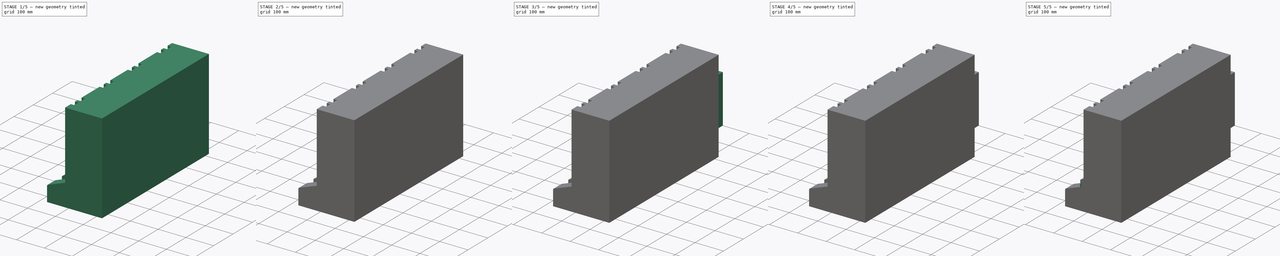
[diagram: build sequence overview — one tinted view per stage of 5, left to right]
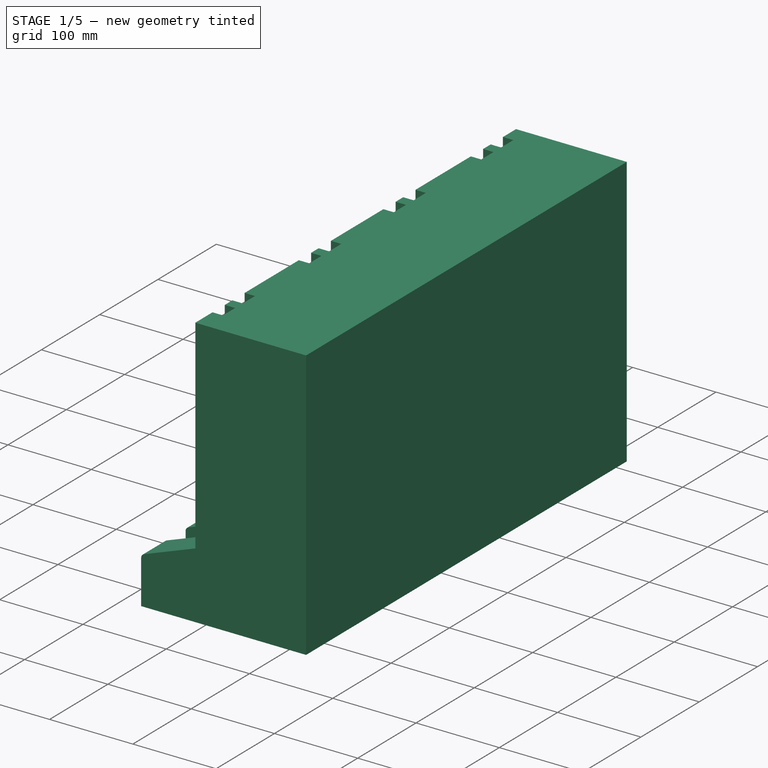
[diagram: stage 1 of 5 — iso view after this stage's code; geometry added in this stage tinted green]
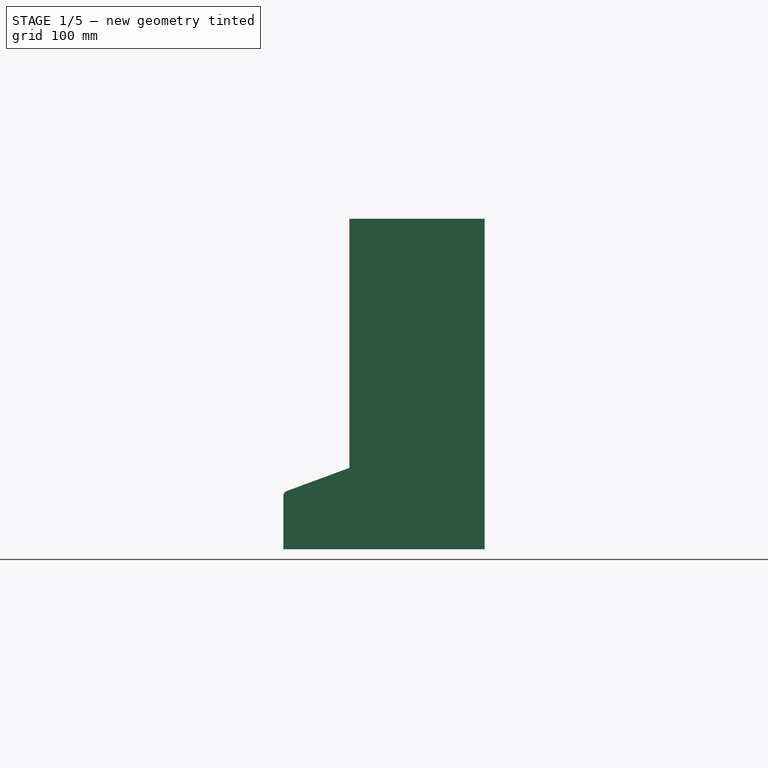
[diagram: stage 1 of 5 — front view after this stage's code; geometry added in this stage tinted green]
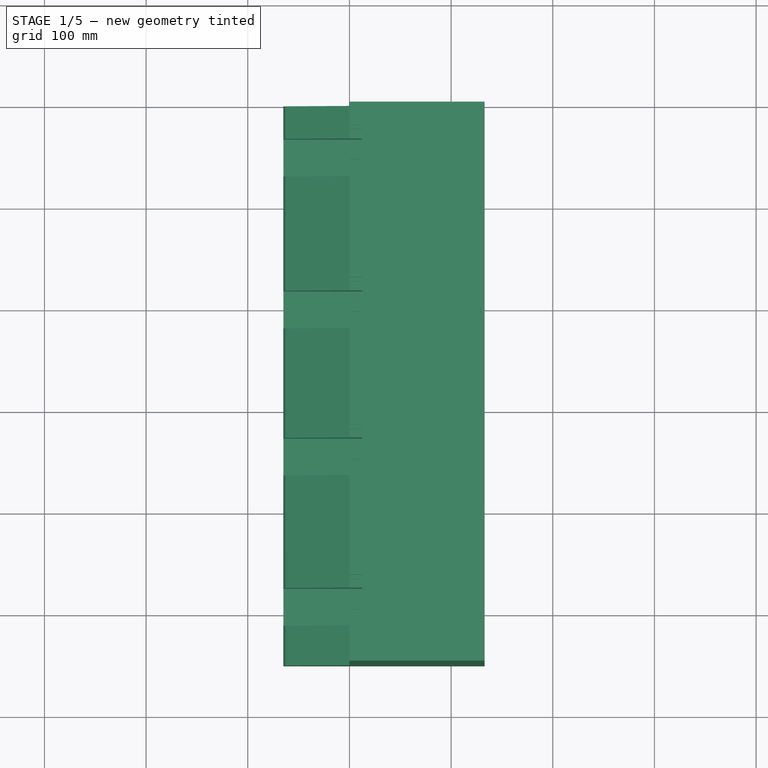
[diagram: stage 1 of 5 — top view after this stage's code; geometry added in this stage tinted green]
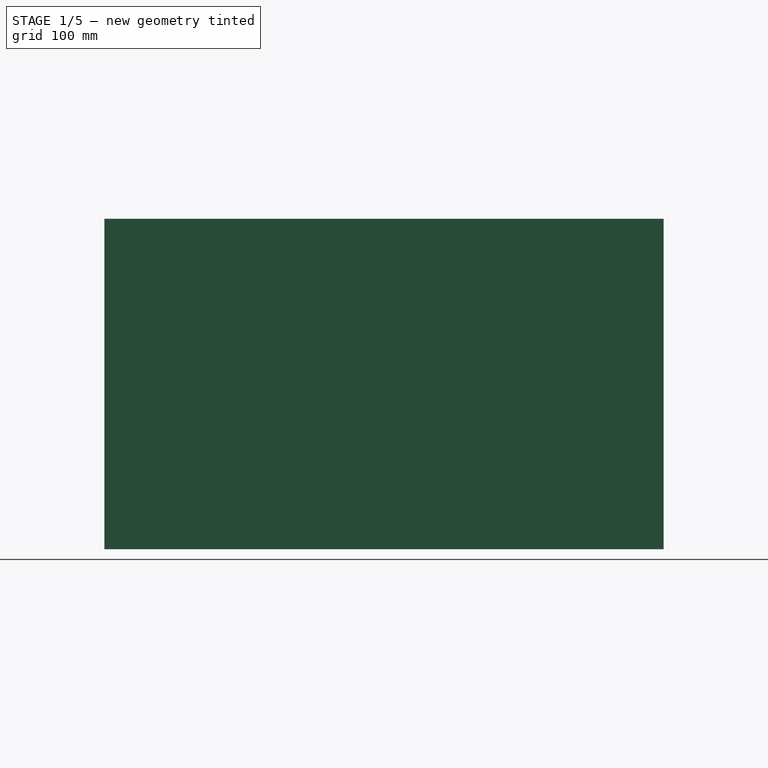
[diagram: stage 1 of 5 — right view after this stage's code; geometry added in this stage tinted green]
FCSTD DOCUMENT  (FreeCAD 1.0R39285 (Git))
Label: motor
License: All rights reserved
LicenseURL: https://en.wikipedia.org/wiki/All_rights_reserved
objects: App::Link×26, Sketcher::SketchObject×22, PartDesign::Pocket×14, PartDesign::Pad×9, PartDesign::Body×7, App::DocumentObjectGroup×3, PartDesign::Revolution×1, Spreadsheet::Sheet×1, PartDesign::CoordinateSystem×1, App::FeaturePython×1, App::Part×1, PartDesign::Fillet×1, PartDesign::Chamfer×1
note: 130 computed .brp shape members not serialized (recipe doc carries the construction recipe); baked Part::Feature solids carry a one-line shape summary decoded from their .brp

FEATURE [PartDesign::Body] Body003  label="PistonHead"
  AllowCompound = false
  Group = -> [Sketch010,Pad005,Sketch011,Pocket006,Sketch013,Revolution]
  Origin = -> Origin003
  Placement = pos=(0,-7,140.58) rot=(0,0,1;0rad)
  Tip = -> Revolution
FEATURE [Sketcher::SketchObject] Sketch014
  ArcFitTolerance = 1e-06
  AttachmentSupport = -> [XZ_Plane004]
  FullyConstrained = true
  MakeInternals = false
  MapMode = 5
  Placement = pos=(0,0,0) rot=(1,0,0;1.5708rad)
  sketch-geometry (6):
    g0: LineSegment StartX=0 StartY=245 StartZ=0 EndX=0 EndY=0 EndZ=0
    g1: LineSegment StartX=0 StartY=0 StartZ=0 EndX=-65 EndY=-24 EndZ=0
    g2: LineSegment StartX=-65 StartY=-24 StartZ=0 EndX=-65 EndY=-80 EndZ=0
    g3: LineSegment StartX=-65 StartY=-80 StartZ=0 EndX=133 EndY=-80 EndZ=0
    g4: LineSegment StartX=133 StartY=-80 StartZ=0 EndX=133 EndY=245 EndZ=0
    g5: LineSegment StartX=133 StartY=245 StartZ=0 EndX=0 EndY=245 EndZ=0
  constraints (17):
    c: Coincident(g0,g-1)
    c: Vertical(g0)
    c: Coincident(g0,g1)
    c: Coincident(g1,g2)
    c: Vertical(g2)
    c: Coincident(g2,g3)
    c: Horizontal(g3)
    c: Coincident(g3,g4)
    c: Vertical(g4)
    c: Coincident(g4,g5)
    c: Coincident(g5,g0)
    c: Horizontal(g4,g0)
    c: DistanceY(g-1,g4) = 245
    c: DistanceY(g1,g-1) = 24
    c: DistanceY(g2,g-1) = 80
    c: DistanceX(g-1,g3) = 133
    c: DistanceX(g1,g-1) = 65
FEATURE [PartDesign::Pad] Pad006
  Direction = (0,-1,2e-16)
  Length = 550
  Length2 = 10
  Placement = pos=(0,0,0) rot=(1,0,0;1.5708rad)
  Profile = -> Sketch014
  ReferenceAxis = -> Sketch014 [N_Axis]
  Refine = true
  Suppressed = false
  Type = 0
FEATURE [Sketcher::SketchObject] Sketch015
  ArcFitTolerance = 1e-06
  AttachmentSupport = -> [Pad006]
  FullyConstrained = true
  MakeInternals = false
  MapMode = 5
  Placement = pos=(0,0,0) rot=(0.707107,0,-0.707107;3.14159rad)
  sketch-geometry (16):
    g0: LineSegment StartX=-235 StartY=4 StartZ=0 EndX=-8 EndY=4 EndZ=0
    g1: LineSegment StartX=-8 StartY=4 StartZ=0 EndX=-8 EndY=100 EndZ=0
    g2: LineSegment StartX=-8 StartY=100 StartZ=0 EndX=-235 EndY=100 EndZ=0
    g3: LineSegment StartX=-235 StartY=100 StartZ=0 EndX=-235 EndY=4 EndZ=0
    g4: LineSegment StartX=-235 StartY=150 StartZ=0 EndX=-8 EndY=150 EndZ=0
    g5: LineSegment StartX=-8 StartY=150 StartZ=0 EndX=-8 EndY=246 EndZ=0
    g6: LineSegment StartX=-8 StartY=246 StartZ=0 EndX=-235 EndY=246 EndZ=0
    g7: LineSegment StartX=-235 StartY=246 StartZ=0 EndX=-235 EndY=150 EndZ=0
    g8: LineSegment StartX=-235 StartY=296 StartZ=0 EndX=-8 EndY=296 EndZ=0
    g9: LineSegment StartX=-8 StartY=296 StartZ=0 EndX=-8 EndY=392 EndZ=0
    g10: LineSegment StartX=-8 StartY=392 StartZ=0 EndX=-235 EndY=392 EndZ=0
    g11: LineSegment StartX=-235 StartY=392 StartZ=0 EndX=-235 EndY=296 EndZ=0
    g12: LineSegment StartX=-235 StartY=442 StartZ=0 EndX=-8 EndY=442 EndZ=0
    g13: LineSegment StartX=-8 StartY=442 StartZ=0 EndX=-8 EndY=538 EndZ=0
    g14: LineSegment StartX=-8 StartY=538 StartZ=0 EndX=-235 EndY=538 EndZ=0
    g15: LineSegment StartX=-235 StartY=538 StartZ=0 EndX=-235 EndY=442 EndZ=0
  constraints (48):
    c: Coincident(g0,g1)
    c: Coincident(g1,g2)
    c: Coincident(g2,g3)
    c: Coincident(g3,g0)
    c: Horizontal(g0)
    c: Horizontal(g2)
    c: Vertical(g1)
    c: Vertical(g3)
    c: Coincident(g4,g5)
    c: Coincident(g5,g6)
    c: Coincident(g6,g7)
    c: Coincident(g7,g4)
    c: Horizontal(g4)
    c: Horizontal(g6)
    c: Vertical(g5)
    c: Vertical(g7)
    c: Coincident(g8,g9)
    c: Coincident(g9,g10)
    c: Coincident(g10,g11)
    c: Coincident(g11,g8)
    c: Horizontal(g8)
    c: Horizontal(g10)
    c: Vertical(g9)
    c: Vertical(g11)
    c: Coincident(g12,g13)
    c: Coincident(g13,g14)
    c: Coincident(g14,g15)
    c: Coincident(g15,g12)
    c: Horizontal(g12)
    c: Horizontal(g14)
    c: Vertical(g13)
    c: Vertical(g15)
    c: DistanceX(g0,g-1) = 8
    c: DistanceX(g0,g-1) = 235
    c: DistanceY(g-1,g2) = 100
    c: DistanceY(g-1,g0) = 4
    c: Equal(g3,g7)
    c: Equal(g7,g11)
    c: Equal(g11,g15)
    c: Equal(g2,g4)
    c: Equal(g4,g8)
    c: Equal(g8,g12)
    c: Vertical(g1,g4)
    c: Vertical(g4,g8)
    c: Vertical(g8,g12)
    c: DistanceY(g1,g4) = 50
    c: DistanceY(g5,g8) = 50
    c: DistanceY(g9,g12) = 50
FEATURE [PartDesign::Pocket] Pocket008
  BaseFeature = -> Pad006
  Direction = (1,0,2e-16)
  Length = 85
  Length2 = 5
  Placement = pos=(0,0,0) rot=(1,0,0;1.5708rad)
  Profile = -> Sketch015
  ReferenceAxis = -> Sketch015 [N_Axis]
  Refine = true
  Suppressed = false
  Type = 0
FEATURE [Sketcher::SketchObject] Sketch016
  ArcFitTolerance = 1e-06
  AttachmentSupport = -> [YZ_Plane004]
  FullyConstrained = false
  MakeInternals = false
  MapMode = 5
  Placement = pos=(0,0,0) rot=(0.57735,0.57735,0.57735;2.0944rad)
  sketch-geometry (16):
    g0: LineSegment StartX=-32 StartY=75 StartZ=0 EndX=-69 EndY=75 EndZ=0
    g1: LineSegment StartX=-69 StartY=75 StartZ=0 EndX=-69 EndY=-65 EndZ=0
    g2: LineSegment StartX=-69 StartY=-65 StartZ=0 EndX=-32 EndY=-65 EndZ=0
    g3: LineSegment StartX=-32 StartY=-65 StartZ=0 EndX=-32 EndY=75 EndZ=0
    g4: LineSegment StartX=-181.411 StartY=75 StartZ=0 EndX=-218.411 EndY=75 EndZ=0
    g5: LineSegment StartX=-218.411 StartY=75 StartZ=0 EndX=-218.411 EndY=-65 EndZ=0
    g6: LineSegment StartX=-218.411 StartY=-65 StartZ=0 EndX=-181.411 EndY=-65 EndZ=0
    g7: LineSegment StartX=-181.411 StartY=-65 StartZ=0 EndX=-181.411 EndY=75 EndZ=0
    g8: LineSegment StartX=-326.116 StartY=75 StartZ=0 EndX=-363.116 EndY=75 EndZ=0
    g9: LineSegment StartX=-363.116 StartY=75 StartZ=0 EndX=-363.116 EndY=-65 EndZ=0
    g10: LineSegment StartX=-363.116 StartY=-65 StartZ=0 EndX=-326.116 EndY=-65 EndZ=0
    g11: LineSegment StartX=-326.116 StartY=-65 StartZ=0 EndX=-326.116 EndY=75 EndZ=0
    g12: LineSegment StartX=-473.828 StartY=75 StartZ=0 EndX=-510.828 EndY=75 EndZ=0
    g13: LineSegment StartX=-510.828 StartY=75 StartZ=0 EndX=-510.828 EndY=-65 EndZ=0
    g14: LineSegment StartX=-510.828 StartY=-65 StartZ=0 EndX=-473.828 EndY=-65 EndZ=0
    g15: LineSegment StartX=-473.828 StartY=-65 StartZ=0 EndX=-473.828 EndY=75 EndZ=0
  constraints (45):
    c: Coincident(g0,g1)
    c: Coincident(g1,g2)
    c: Coincident(g2,g3)
    c: Coincident(g3,g0)
    c: Horizontal(g0)
    c: Horizontal(g2)
    c: Vertical(g1)
    c: Vertical(g3)
    c: Coincident(g4,g5)
    c: Coincident(g5,g6)
    c: Coincident(g6,g7)
    c: Coincident(g7,g4)
    c: Horizontal(g4)
    c: Horizontal(g6)
    c: Vertical(g5)
    c: Vertical(g7)
    c: Coincident(g8,g9)
    c: Coincident(g9,g10)
    c: Coincident(g10,g11)
    c: Coincident(g11,g8)
    c: Horizontal(g8)
    c: Horizontal(g10)
    c: Vertical(g9)
    c: Vertical(g11)
    c: Coincident(g12,g13)
    c: Coincident(g13,g14)
    c: Coincident(g14,g15)
    c: Coincident(g15,g12)
    c: Horizontal(g12)
    c: Horizontal(g14)
    c: Vertical(g13)
    c: Vertical(g15)
    c: DistanceX(g2,g-1) = 32
    c: DistanceX(g1,g-1) = 69
    c: Equal(g2,g6)
    c: Equal(g6,g10)
    c: Equal(g10,g14)
    c: DistanceY(g-1,g0) = 75
    c: Equal(g3,g7)
    c: Equal(g7,g11)
    c: Equal(g11,g15)
    c: DistanceY(g2,g-1) = 65
    c: Horizontal(g0,g4)
    c: Horizontal(g4,g8)
    c: Horizontal(g8,g12)
FEATURE [PartDesign::Pocket] Pocket009
  BaseFeature = -> Pocket008
  Direction = (-1,0,0)
  Length = 130
  Length2 = 5
  Midplane = true
  Placement = pos=(0,0,0) rot=(1,0,0;1.5708rad)
  Profile = -> Sketch016
  ReferenceAxis = -> Sketch016 [N_Axis]
  Refine = true
  Suppressed = false
  Type = 0
FEATURE [PartDesign::Body] Body001  label="Rotor"
  AllowCompound = true
  Group = -> [Sketch001,Pad001,Sketch002,Pocket,Sketch003,Pocket001,Sketch008,Pocket004,Sketch009,Pocket005,Pocket013]
  Origin = -> Origin001
  Placement = pos=(0,2.5,0) rot=(0,-1,0;-1.33343rad)
  Tip = -> Pocket013
FEATURE [PartDesign::CoordinateSystem] LCS_Origin
  AttacherType = Attacher::AttachEngine3D
  AttachmentSupport = -> [X_Axis006]
  MapMode = 2
FEATURE [App::DocumentObjectGroup] Constraints
FEATURE [App::FeaturePython] Variables  # WARN: FeaturePython — macro-defined, semantics opaque (R4)
  Type = App::PropertyContainer
FEATURE [App::DocumentObjectGroup] Configurations
FEATURE [App::Link] Body006
  LinkPlacement = pos=(0,-46,0) rot=(0,0,1;0rad)
  LinkedObject = -> Body
  Placement = pos=(0,-46,0) rot=(0,0,1;0rad)
FEATURE [App::Link] Body007
  LinkPlacement = pos=(0,-46,0) rot=(0,0,1;0rad)
  LinkedObject = -> Body004
  Placement = pos=(0,-46,0) rot=(0,0,1;0rad)
FEATURE [App::Link] Rotor  label="Rotor001"
  LinkPlacement = pos=(0,-87,0) rot=(0,-1,0;-1.54643rad)
  LinkedObject = -> Body001
  Placement = pos=(0,-87,0) rot=(0,-1,0;-1.54643rad)
  expr: .Placement.Rotation.Angle = <<Parameters>>.Angle
FEATURE [App::Link] Rotor001  label="Rotor002"
  LinkPlacement = pos=(0,-236,0) rot=(0,-1,0;1.59516rad)
  LinkedObject = -> Body001
  Placement = pos=(0,-236,0) rot=(0,-1,0;1.59516rad)
  expr: .Placement.Rotation.Angle = <<Parameters>>.Angle_rev
FEATURE [App::Link] Rotor002  label="Rotor003"
  LinkPlacement = pos=(0,-381,0) rot=(0,-1,0;1.59516rad)
  LinkedObject = -> Body001
  Placement = pos=(0,-381,0) rot=(0,-1,0;1.59516rad)
  expr: .Placement.Rotation.Angle = <<Parameters>>.Angle_rev
FEATURE [App::Link] Rotor003  label="Rotor004"
  LinkPlacement = pos=(0,-528,0) rot=(0,-1,0;-1.54643rad)
  LinkedObject = -> Body001
  Placement = pos=(0,-528,0) rot=(0,-1,0;-1.54643rad)
  expr: .Placement.Rotation.Angle = <<Parameters>>.Angle
FEATURE [App::Link] Bar  label="Bar001"
  LinkPlacement = pos=(44.9866,-89.5,-43.9035) rot=(0,1,0;-0.261722rad)
  LinkedObject = -> Body002
  Placement = pos=(44.9866,-89.5,-43.9035) rot=(0,1,0;-0.261722rad)
  expr: .Placement.Base.x = <<Parameters>>.Bar_PosX
  expr: .Placement.Base.z = -45 mm + <<Parameters>>.Crank_Pos
  expr: .Placement.Rotation.Angle = <<Parameters>>.Bar_Angle
FEATURE [App::Link] Bar001  label="Bar002"
  LinkPlacement = pos=(-44.9866,-238.5,-46.0965) rot=(0,1,0;0.261722rad)
  LinkedObject = -> Body002
  Placement = pos=(-44.9866,-238.5,-46.0965) rot=(0,1,0;0.261722rad)
  expr: .Placement.Base.x = <<Parameters>>.Bar_PosX_rev
  expr: .Placement.Base.z = -45 mm + <<Parameters>>.Crank_Pos_rev
  expr: .Placement.Rotation.Angle = <<Parameters>>.Bar_Angle_rev
FEATURE [App::Link] Bar002  label="Bar003"
  LinkPlacement = pos=(-44.9866,-383.5,-46.0965) rot=(0,1,0;0.261722rad)
  LinkedObject = -> Body002
  Placement = pos=(-44.9866,-383.5,-46.0965) rot=(0,1,0;0.261722rad)
  expr: .Placement.Base.x = <<Parameters>>.Bar_PosX_rev
  expr: .Placement.Base.z = -45 mm + <<Parameters>>.Crank_Pos_rev
  expr: .Placement.Rotation.Angle = <<Parameters>>.Bar_Angle_rev
FEATURE [App::Link] Bar003  label="Bar004"
  LinkPlacement = pos=(44.9866,-530.5,-43.9035) rot=(0,1,0;-0.261722rad)
  LinkedObject = -> Body002
  Placement = pos=(44.9866,-530.5,-43.9035) rot=(0,1,0;-0.261722rad)
  expr: .Placement.Base.x = <<Parameters>>.Bar_PosX
  expr: .Placement.Base.z = -45 mm + <<Parameters>>.Crank_Pos
  expr: .Placement.Rotation.Angle = <<Parameters>>.Bar_Angle
FEATURE [App::Link] CaseInterior  label="CaseInterior001"
  LinkPlacement = pos=(0,-89,73) rot=(0,0,1;0rad)
  LinkedObject = -> Body005
  Placement = pos=(0,-89,73) rot=(0,0,1;0rad)
FEATURE [App::Link] CaseInterior001  label="CaseInterior002"
  LinkPlacement = pos=(0,-238,73) rot=(0,0,1;0rad)
  LinkedObject = -> Body005
  Placement = pos=(0,-238,73) rot=(0,0,1;0rad)
FEATURE [App::Link] CaseInterior002  label="CaseInterior003"
  LinkPlacement = pos=(0,-383,73) rot=(0,0,1;0rad)
  LinkedObject = -> Body005
  Placement = pos=(0,-383,73) rot=(0,0,1;0rad)
FEATURE [App::Link] CaseInterior003  label="CaseInterior004"
  LinkPlacement = pos=(0,-530,73) rot=(0,0,1;0rad)
  LinkedObject = -> Body005
  Placement = pos=(0,-530,73) rot=(0,0,1;0rad)
FEATURE [App::Link] PistonHead  label="PistonHead001"
  LinkPlacement = pos=(0,-96.5,131.096) rot=(0,0,1;0rad)
  LinkedObject = -> Body003
  Placement = pos=(0,-96.5,131.096) rot=(0,0,1;0rad)
  expr: .Placement.Base.z = 130 mm + <<Parameters>>.Crank_Pos
FEATURE [App::Link] PistonHead001  label="PistonHead002"
  LinkPlacement = pos=(0,-537.5,131.096) rot=(0,0,1;0rad)
  LinkedObject = -> Body003
  Placement = pos=(0,-537.5,131.096) rot=(0,0,1;0rad)
  expr: .Placement.Base.y = -537.5
  expr: .Placement.Base.z = 130 mm + <<Parameters>>.Crank_Pos
FEATURE [App::Link] PistonHead002  label="PistonHead003"
  LinkPlacement = pos=(0,-245.5,128.904) rot=(0,0,1;0rad)
  LinkedObject = -> Body003
  Placement = pos=(0,-245.5,128.904) rot=(0,0,1;0rad)
  expr: .Placement.Base.z = 130 mm + <<Parameters>>.Crank_Pos_rev
FEATURE [App::Link] PistonHead003  label="PistonHead004"
  LinkPlacement = pos=(0,-390.5,128.904) rot=(0,0,1;0rad)
  LinkedObject = -> Body003
  Placement = pos=(0,-390.5,128.904) rot=(0,0,1;0rad)
  expr: .Placement.Base.z = 130 mm + <<Parameters>>.Crank_Pos_rev
FEATURE [Sketcher::SketchObject] Sketch019
  ArcFitTolerance = 1e-06
  AttachmentSupport = -> [XY_Plane004]
  ExternalGeometry = -> [Pocket009]
  FullyConstrained = true
  MakeInternals = false
  MapMode = 5
  sketch-geometry (32):
    g0: LineSegment StartX=0 StartY=-22.5 StartZ=0 EndX=0 EndY=-43.5 EndZ=0
    g1: LineSegment StartX=0 StartY=-43.5 StartZ=0 EndX=12.5 EndY=-43.5 EndZ=0
    g2: LineSegment StartX=12.5 StartY=-43.5 StartZ=0 EndX=12.5 EndY=-22.5 EndZ=0
    g3: LineSegment StartX=12.5 StartY=-22.5 StartZ=0 EndX=0 EndY=-22.5 EndZ=0
    g4: LineSegment StartX=0 StartY=-56.5 StartZ=0 EndX=0 EndY=-77.5 EndZ=0
    g5: LineSegment StartX=0 StartY=-77.5 StartZ=0 EndX=12.5 EndY=-77.5 EndZ=0
    g6: LineSegment StartX=12.5 StartY=-77.5 StartZ=0 EndX=12.5 EndY=-56.5 EndZ=0
    g7: LineSegment StartX=12.5 StartY=-56.5 StartZ=0 EndX=0 EndY=-56.5 EndZ=0
    g8: LineSegment StartX=0 StartY=-172.5 StartZ=0 EndX=0 EndY=-193.5 EndZ=0
    g9: LineSegment StartX=0 StartY=-193.5 StartZ=0 EndX=12.5 EndY=-193.5 EndZ=0
    g10: LineSegment StartX=12.5 StartY=-193.5 StartZ=0 EndX=12.5 EndY=-172.5 EndZ=0
    g11: LineSegment StartX=12.5 StartY=-172.5 StartZ=0 EndX=0 EndY=-172.5 EndZ=0
    g12: LineSegment StartX=0 StartY=-206.5 StartZ=0 EndX=0 EndY=-227.5 EndZ=0
    g13: LineSegment StartX=0 StartY=-227.5 StartZ=0 EndX=12.5 EndY=-227.5 EndZ=0
    g14: LineSegment StartX=12.5 StartY=-227.5 StartZ=0 EndX=12.5 EndY=-206.5 EndZ=0
    g15: LineSegment StartX=12.5 StartY=-206.5 StartZ=0 EndX=0 EndY=-206.5 EndZ=0
    g16: LineSegment StartX=0 StartY=-317.5 StartZ=0 EndX=0 EndY=-338.5 EndZ=0
    g17: LineSegment StartX=0 StartY=-338.5 StartZ=0 EndX=12.5 EndY=-338.5 EndZ=0
    g18: LineSegment StartX=12.5 StartY=-338.5 StartZ=0 EndX=12.5 EndY=-317.5 EndZ=0
    g19: LineSegment StartX=12.5 StartY=-317.5 StartZ=0 EndX=0 EndY=-317.5 EndZ=0
    g20: LineSegment StartX=0 StartY=-351.5 StartZ=0 EndX=0 EndY=-372.5 EndZ=0
    g21: LineSegment StartX=0 StartY=-372.5 StartZ=0 EndX=12.5 EndY=-372.5 EndZ=0
    g22: LineSegment StartX=12.5 StartY=-372.5 StartZ=0 EndX=12.5 EndY=-351.5 EndZ=0
    g23: LineSegment StartX=12.5 StartY=-351.5 StartZ=0 EndX=0 EndY=-351.5 EndZ=0
    g24: LineSegment StartX=0 StartY=-465.5 StartZ=0 EndX=0 EndY=-486.5 EndZ=0
    g25: LineSegment StartX=0 StartY=-486.5 StartZ=0 EndX=12.5 EndY=-486.5 EndZ=0
    g26: LineSegment StartX=12.5 StartY=-486.5 StartZ=0 EndX=12.5 EndY=-465.5 EndZ=0
    g27: LineSegment StartX=12.5 StartY=-465.5 StartZ=0 EndX=0 EndY=-465.5 EndZ=0
    g28: LineSegment StartX=0 StartY=-499.5 StartZ=0 EndX=0 EndY=-520.5 EndZ=0
    g29: LineSegment StartX=0 StartY=-520.5 StartZ=0 EndX=12.5 EndY=-520.5 EndZ=0
    g30: LineSegment StartX=12.5 StartY=-520.5 StartZ=0 EndX=12.5 EndY=-499.5 EndZ=0
    g31: LineSegment StartX=12.5 StartY=-499.5 StartZ=0 EndX=0 EndY=-499.5 EndZ=0
  constraints (96):
    c: Coincident(g0,g1)
    c: Coincident(g1,g2)
    c: Coincident(g2,g3)
    c: Coincident(g3,g0)
    c: Vertical(g0)
    c: Vertical(g2)
    c: Horizontal(g1)
    c: Horizontal(g3)
    c: PointOnObject(g0,g-3)
    c: Coincident(g4,g5)
    c: Coincident(g5,g6)
    c: Coincident(g6,g7)
    c: Coincident(g7,g4)
    c: Vertical(g4)
    c: Vertical(g6)
    c: Horizontal(g5)
    c: Horizontal(g7)
    c: PointOnObject(g4,g-3)
    c: DistanceY(g0,g-1) = 22.5
    c: DistanceX(g-1,g2) = 12.5
    c: DistanceY(g0,g-1) = 43.5
    c: Equal(g1,g7)
    c: Equal(g0,g4)
    c: Coincident(g8,g9)
    c: Coincident(g9,g10)
    c: Coincident(g10,g11)
    c: Coincident(g11,g8)
    c: Vertical(g8)
    c: Vertical(g10)
    c: Horizontal(g9)
    c: Horizontal(g11)
    c: PointOnObject(g8,g-3)
    c: Coincident(g12,g13)
    c: Coincident(g13,g14)
    c: Coincident(g14,g15)
    c: Coincident(g15,g12)
    c: Vertical(g12)
    c: Vertical(g14)
    c: Horizontal(g13)
    c: Horizontal(g15)
    c: PointOnObject(g12,g-3)
    c: Coincident(g16,g17)
    c: Coincident(g17,g18)
    c: Coincident(g18,g19)
    c: Coincident(g19,g16)
    c: Vertical(g16)
    c: Vertical(g18)
    c: Horizontal(g17)
    c: Horizontal(g19)
    c: PointOnObject(g16,g-3)
    c: Coincident(g20,g21)
    c: Coincident(g21,g22)
    c: Coincident(g22,g23)
    c: Coincident(g23,g20)
    c: Vertical(g20)
    c: Vertical(g22)
    c: Horizontal(g21)
    c: Horizontal(g23)
    c: PointOnObject(g20,g-3)
    c: Coincident(g24,g25)
    c: Coincident(g25,g26)
    c: Coincident(g26,g27)
    c: Coincident(g27,g24)
    c: Vertical(g24)
    c: Vertical(g26)
    c: Horizontal(g25)
    c: Horizontal(g27)
    c: PointOnObject(g24,g-3)
    c: Coincident(g28,g29)
    c: Coincident(g29,g30)
    c: Coincident(g30,g31)
    c: Coincident(g31,g28)
    c: Vertical(g28)
    c: Vertical(g30)
    c: Horizontal(g29)
    c: Horizontal(g31)
    c: PointOnObject(g28,g-3)
    c: Equal(g5,g11)
    c: Equal(g4,g8)
    c: Equal(g9,g15)
    c: Equal(g8,g12)
    c: Equal(g13,g19)
    c: Equal(g12,g16)
    c: Equal(g17,g23)
    c: Equal(g16,g20)
    c: Equal(g21,g27)
    c: Equal(g25,g31)
    c: Equal(g20,g24)
    c: Equal(g24,g28)
    c: DistanceY(g4,g0) = 13
    c: DistanceY(g12,g8) = 13
    c: DistanceY(g20,g16) = 13
    c: DistanceY(g28,g24) = 13
    c: DistanceY(g8,g4) = 95
    c: DistanceY(g16,g12) = 90
    c: DistanceY(g24,g20) = 93
FEATURE [PartDesign::Pocket] Pocket014
  BaseFeature = -> Pocket009
  Direction = (0,0,-1)
  Length = 111
  Length2 = 5
  Placement = pos=(0,0,0) rot=(1,0,0;1.5708rad)
  Profile = -> Sketch019
  ReferenceAxis = -> Sketch019 [N_Axis]
  Refine = true
  Reversed = true
  Suppressed = false
  Type = 1
FEATURE [PartDesign::Body] Body008  label="Supapa"
  AllowCompound = false
  Group = -> [Sketch020,Pad008,Sketch021,Pad009]
  Origin = -> Origin007
  Placement = pos=(0,0,236) rot=(0,0,1;0rad)
  Tip = -> Pad009
FEATURE [PartDesign::Fillet] Fillet
  Base = -> Pocket014 [Edge14,Edge91,Edge87,Edge83,Edge79]
  BaseFeature = -> Pocket014
  Placement = pos=(0,0,0) rot=(1,0,0;1.5708rad)
  Radius = 5
  Refine = true
  SupportTransform = false
  Suppressed = false
  UseAllEdges = false
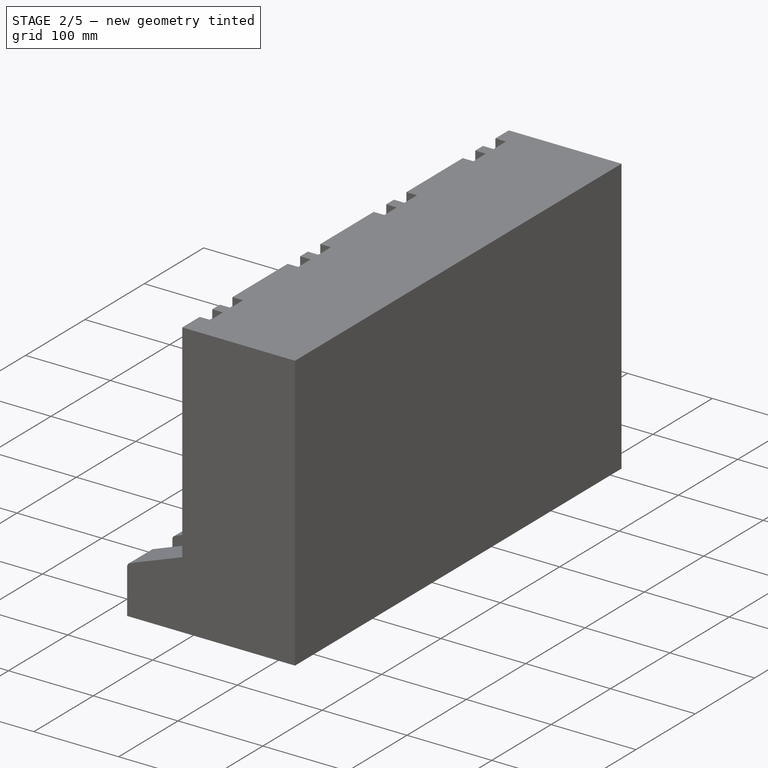
[diagram: stage 2 of 5 — iso view after this stage's code; geometry added in this stage tinted green]
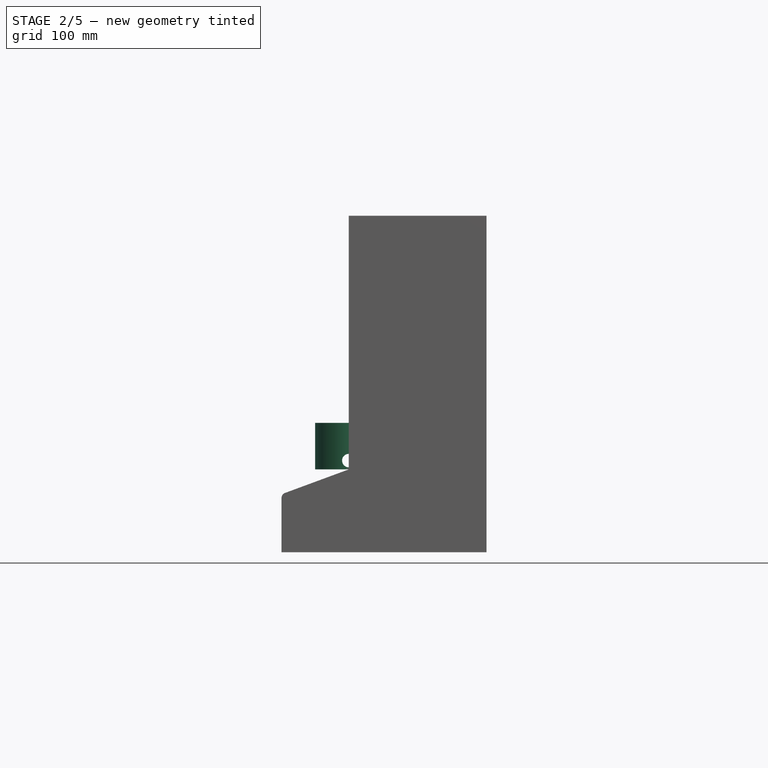
[diagram: stage 2 of 5 — front view after this stage's code; geometry added in this stage tinted green]
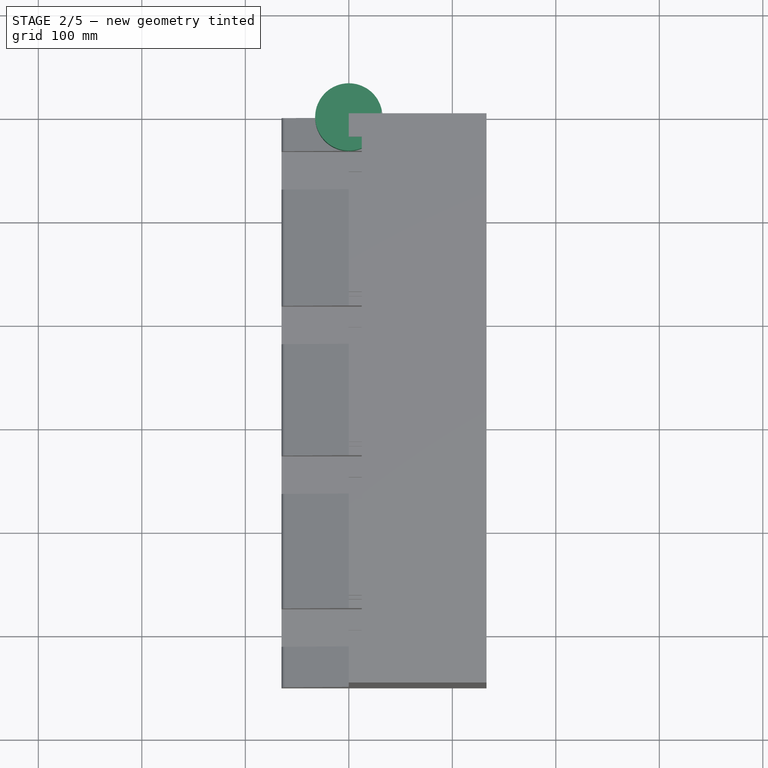
[diagram: stage 2 of 5 — top view after this stage's code; geometry added in this stage tinted green]
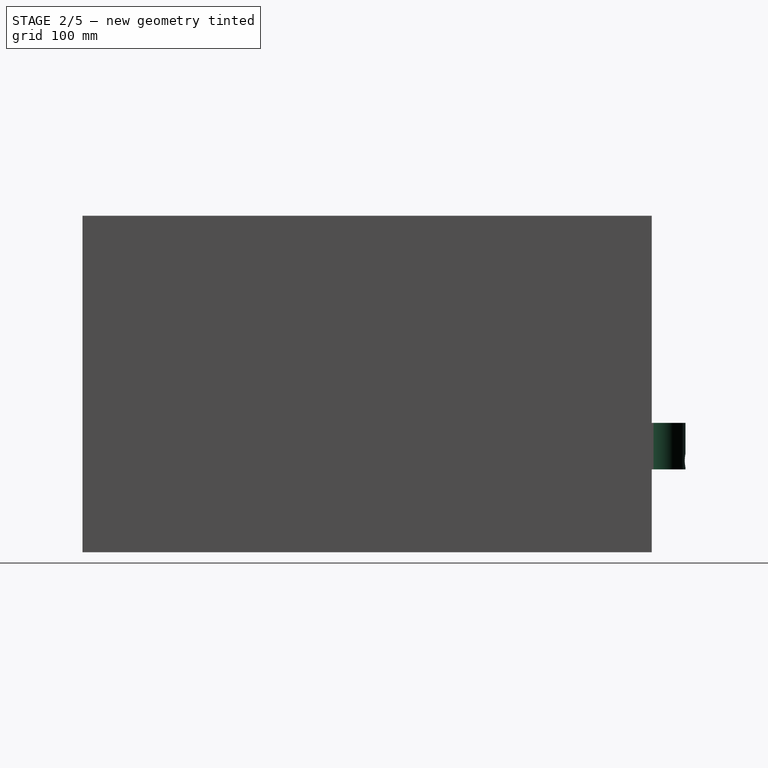
[diagram: stage 2 of 5 — right view after this stage's code; geometry added in this stage tinted green]
FEATURE [Sketcher::SketchObject] Sketch008
  ArcFitTolerance = 1e-06
  AttachmentSupport = -> [YZ_Plane001]
  FullyConstrained = false
  MakeInternals = false
  MapMode = 5
  Placement = pos=(0,0,0) rot=(0.57735,0.57735,0.57735;2.0944rad)
  sketch-geometry (4):
    g0: LineSegment StartX=-14.5 StartY=72.9316 StartZ=0 EndX=-14.5 EndY=-69.5294 EndZ=0
    g1: LineSegment StartX=-14.5 StartY=-69.5294 StartZ=0 EndX=-5.5 EndY=-69.5294 EndZ=0
    g2: LineSegment StartX=-5.5 StartY=-69.5294 StartZ=0 EndX=-5.5 EndY=72.9316 EndZ=0
    g3: LineSegment StartX=-5.5 StartY=72.9316 StartZ=0 EndX=-14.5 EndY=72.9316 EndZ=0
  constraints (10):
    c: Coincident(g0,g1)
    c: Coincident(g1,g2)
    c: Coincident(g2,g3)
    c: Coincident(g3,g0)
    c: Vertical(g0)
    c: Vertical(g2)
    c: Horizontal(g1)
    c: Horizontal(g3)
    c: DistanceX(g2,g-1) = 5.5
    c: DistanceX(g0,g-1) = 14.5
FEATURE [Sketcher::SketchObject] Sketch009
  ArcFitTolerance = 1e-06
  AttachmentSupport = -> [XZ_Plane001]
  FullyConstrained = true
  MakeInternals = false
  MapMode = 5
  Placement = pos=(0,0,0) rot=(1,0,0;1.5708rad)
  sketch-geometry (1):
    g0: Circle CenterX=0 CenterY=45 CenterZ=0 NormalX=0 NormalY=0 NormalZ=1 AngleXU=0 Radius=10
  constraints (3):
    c: Diameter(g0) = 20
    c: PointOnObject(g0,g-2)
    c: Distance(g0,g-1) = 45
FEATURE [Sketcher::SketchObject] Sketch010
  ArcFitTolerance = 1e-06
  AttachmentSupport = -> [XY_Plane003]
  FullyConstrained = true
  MakeInternals = false
  MapMode = 5
  sketch-geometry (1):
    g0: Circle CenterX=0 CenterY=0 CenterZ=0 NormalX=0 NormalY=0 NormalZ=1 AngleXU=0 Radius=32.5
  constraints (2):
    c: Diameter(g0) = 65
    c: Coincident(g0,g-1)
FEATURE [PartDesign::Pad] Pad005
  Direction = (0,0,1)
  Length = 45
  Length2 = 10
  Profile = -> Sketch010
  ReferenceAxis = -> Sketch010 [N_Axis]
  Refine = true
  Suppressed = false
  Type = 0
FEATURE [Sketcher::SketchObject] Sketch011
  ArcFitTolerance = 1e-06
  AttachmentSupport = -> [XZ_Plane003]
  FullyConstrained = true
  MakeInternals = false
  MapMode = 5
  Placement = pos=(0,0,0) rot=(1,0,0;1.5708rad)
  sketch-geometry (1):
    g0: Circle CenterX=0 CenterY=8.5 CenterZ=0 NormalX=0 NormalY=0 NormalZ=1 AngleXU=0 Radius=6.5
  constraints (3):
    c: Diameter(g0) = 13
    c: PointOnObject(g0,g-2)
    c: DistanceY(g-1,g0) = 8.5
FEATURE [PartDesign::Pocket] Pocket006
  BaseFeature = -> Pad005
  Direction = (0,1,-2e-16)
  Length = 5
  Length2 = 5
  Midplane = true
  Profile = -> Sketch011
  ReferenceAxis = -> Sketch011 [N_Axis]
  Refine = true
  Suppressed = false
  Type = 1
FEATURE [Sketcher::SketchObject] Sketch020
  ArcFitTolerance = 1e-06
  AttachmentSupport = -> [XY_Plane007]
  FullyConstrained = false
  MakeInternals = false
  MapMode = 5
  sketch-geometry (4):
    g0: LineSegment StartX=0 StartY=20.4996 StartZ=0 EndX=0 EndY=-0.500933 EndZ=0
    g1: LineSegment StartX=0 StartY=-0.500933 StartZ=0 EndX=12.4997 EndY=-0.500933 EndZ=0
    g2: LineSegment StartX=12.4997 StartY=-0.500933 StartZ=0 EndX=12.4997 EndY=20.4996 EndZ=0
    g3: LineSegment StartX=12.4997 StartY=20.4996 StartZ=0 EndX=0 EndY=20.4996 EndZ=0
  constraints (9):
    c: Coincident(g0,g1)
    c: Coincident(g1,g2)
    c: Coincident(g2,g3)
    c: Coincident(g3,g0)
    c: Vertical(g0)
    c: Vertical(g2)
    c: Horizontal(g1)
    c: Horizontal(g3)
    c: PointOnObject(g0,g-2)
FEATURE [PartDesign::Pad] Pad008
  Direction = (0,0,1)
  Length = 8
  Length2 = 10
  Profile = -> Sketch020
  ReferenceAxis = -> Sketch020 [N_Axis]
  Refine = true
  Suppressed = false
  Type = 0
FEATURE [App::Link] Supapa  label="Supapa001"
  LinkPlacement = pos=(0,-89,236) rot=(0,0,1;0rad)
  LinkedObject = -> Body008
  Placement = pos=(0,-89,236) rot=(0,0,1;0rad)
  expr: .Placement.Base.z = 236 mm + <<Parameters>>.Supapa_A
FEATURE [App::Link] Supapa001  label="Supapa002"
  LinkPlacement = pos=(0,-123,236) rot=(0,0,1;0rad)
  LinkedObject = -> Body008
  Placement = pos=(0,-123,236) rot=(0,0,1;0rad)
  expr: .Placement.Base.z = 236 mm + <<Parameters>>.Supapa_B
FEATURE [App::Link] Supapa002  label="Supapa003"
  LinkPlacement = pos=(0,-239,236) rot=(0,0,1;0rad)
  LinkedObject = -> Body008
  Placement = pos=(0,-239,236) rot=(0,0,1;0rad)
  expr: .Placement.Base.z = 236 mm + <<Parameters>>.Supapa_A2
FEATURE [App::Link] Supapa003  label="Supapa004"
  LinkPlacement = pos=(0,-273,236) rot=(0,0,1;0rad)
  LinkedObject = -> Body008
  Placement = pos=(0,-273,236) rot=(0,0,1;0rad)
  expr: .Placement.Base.z = 236 mm + <<Parameters>>.Supapa_B2
FEATURE [App::Link] Supapa004  label="Supapa005"
  LinkPlacement = pos=(0,-384,236.487) rot=(0,0,1;0rad)
  LinkedObject = -> Body008
  Placement = pos=(0,-384,236.487) rot=(0,0,1;0rad)
  expr: .Placement.Base.z = 236 mm + <<Parameters>>.Supapa_A3
FEATURE [App::Link] Supapa005  label="Supapa006"
  LinkPlacement = pos=(0,-418,236) rot=(0,0,1;0rad)
  LinkedObject = -> Body008
  Placement = pos=(0,-418,236) rot=(0,0,1;0rad)
  expr: .Placement.Base.z = 236 mm + <<Parameters>>.Supapa_B3
FEATURE [App::Link] Supapa006  label="Supapa007"
  LinkPlacement = pos=(0,-532,236) rot=(0,0,1;0rad)
  LinkedObject = -> Body008
  Placement = pos=(0,-532,236) rot=(0,0,1;0rad)
  expr: .Placement.Base.z = 236 mm + <<Parameters>>.Supapa_A4
FEATURE [App::Link] Supapa007  label="Supapa008"
  LinkPlacement = pos=(0,-566,236.487) rot=(0,0,1;0rad)
  LinkedObject = -> Body008
  Placement = pos=(0,-566,236.487) rot=(0,0,1;0rad)
  expr: .Placement.Base.z = 236 mm + <<Parameters>>.Supapa_B4
FEATURE [App::Part] Assembly
  AssemblyType = Part::Link
  Group = -> [LCS_Origin,Constraints,Variables,Configurations,Body006,Body007,Rotor,Rotor001,Rotor002,Rotor003,Bar,Bar001,Bar002,Bar003,CaseInterior,CaseInterior001,CaseInterior002,CaseInterior003,PistonHead,PistonHead001,PistonHead002,PistonHead003,Supapa,Supapa001,Supapa002,Supapa003,Supapa004,Supapa005,Supapa006,Supapa007]
  Origin = -> Origin006
  Type = Assembly
FEATURE [Sketcher::SketchObject] Sketch021
  ArcFitTolerance = 1e-06
  AttachmentSupport = -> [Pad008]
  ExternalGeometry = -> [Pad008]
  FullyConstrained = false
  MakeInternals = false
  MapMode = 5
  Placement = pos=(0,0,8) rot=(0,0,1;0rad)
  sketch-geometry (1):
    g0: Circle CenterX=6.35 CenterY=9.99907 CenterZ=0 NormalX=0 NormalY=0 NormalZ=1 AngleXU=0 Radius=1.98528
  constraints (2):
    c: Distance(g0,g-4) = 10.5
    c: DistanceX(g-1,g0) = 6.35
FEATURE [PartDesign::Pad] Pad009
  BaseFeature = -> Pad008
  Direction = (0,0,1)
  Length = 20
  Length2 = 10
  Profile = -> Sketch021
  ReferenceAxis = -> Sketch021 [N_Axis]
  Refine = true
  Suppressed = false
  Type = 0
FEATURE [PartDesign::Chamfer] Chamfer
  Angle = 45
  Base = -> Fillet [Edge171,Edge176,Edge194,Edge200,Edge218,Edge224,Edge242,Edge16]
  BaseFeature = -> Fillet
  ChamferType = 0
  FlipDirection = false
  Placement = pos=(0,0,0) rot=(1,0,0;1.5708rad)
  Refine = true
  Size = 3
  Size2 = 1
  SupportTransform = false
  Suppressed = false
  UseAllEdges = false
FEATURE [PartDesign::Body] Body004  label="Case"
  AllowCompound = false
  Group = -> [Sketch014,Pad006,Sketch015,Pocket008,Sketch016,Pocket009,Sketch019,Pocket014,Fillet,Chamfer]
  Origin = -> Origin004
  Placement = pos=(0,43,0) rot=(0,0,1;0rad)
  Tip = -> Chamfer
FEATURE [App::DocumentObjectGroup] Parts
  Group = -> [Body,Body001,Body002,Body003,Body004,Body005,Body008]
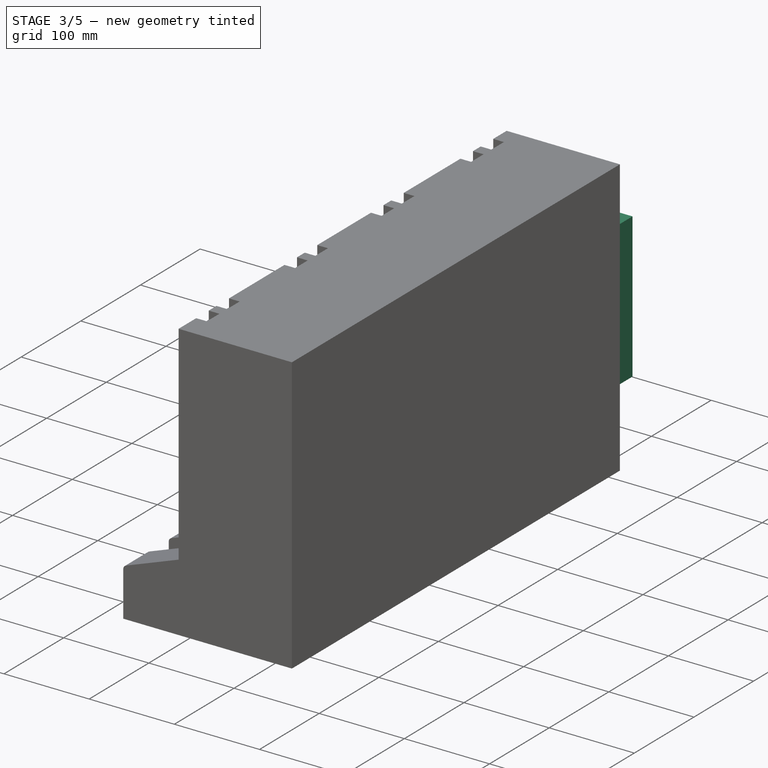
[diagram: stage 3 of 5 — iso view after this stage's code; geometry added in this stage tinted green]
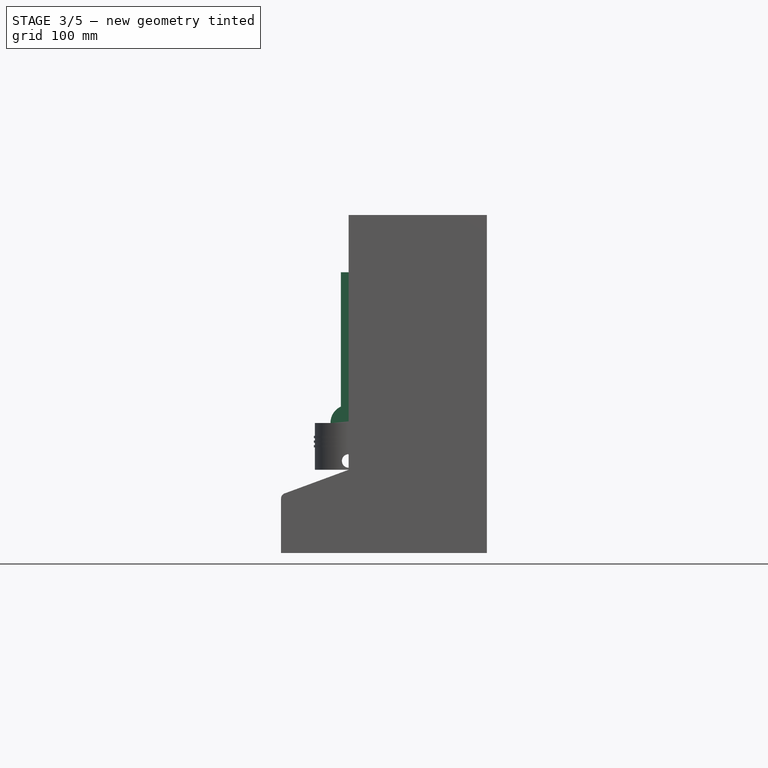
[diagram: stage 3 of 5 — front view after this stage's code; geometry added in this stage tinted green]
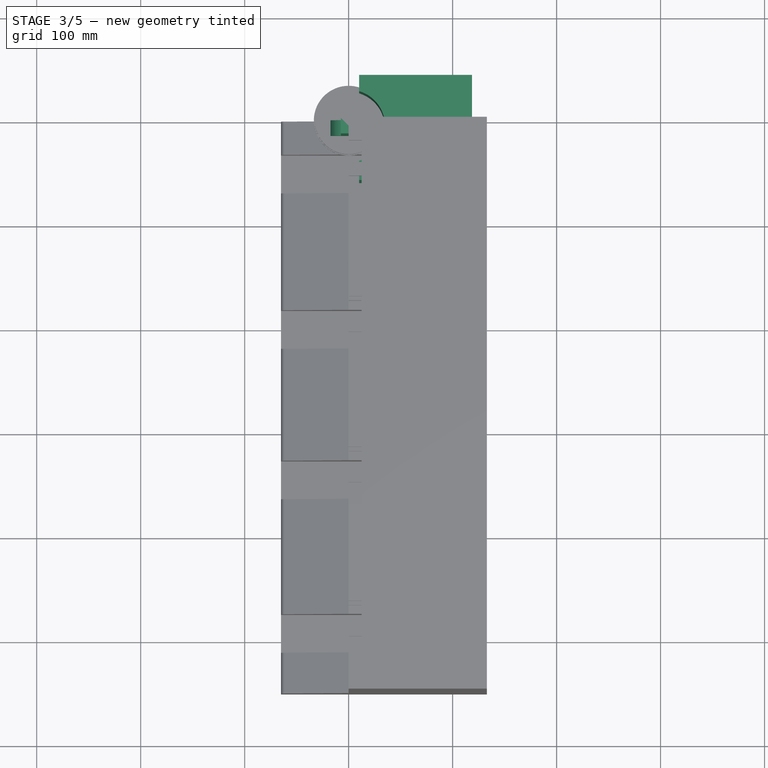
[diagram: stage 3 of 5 — top view after this stage's code; geometry added in this stage tinted green]
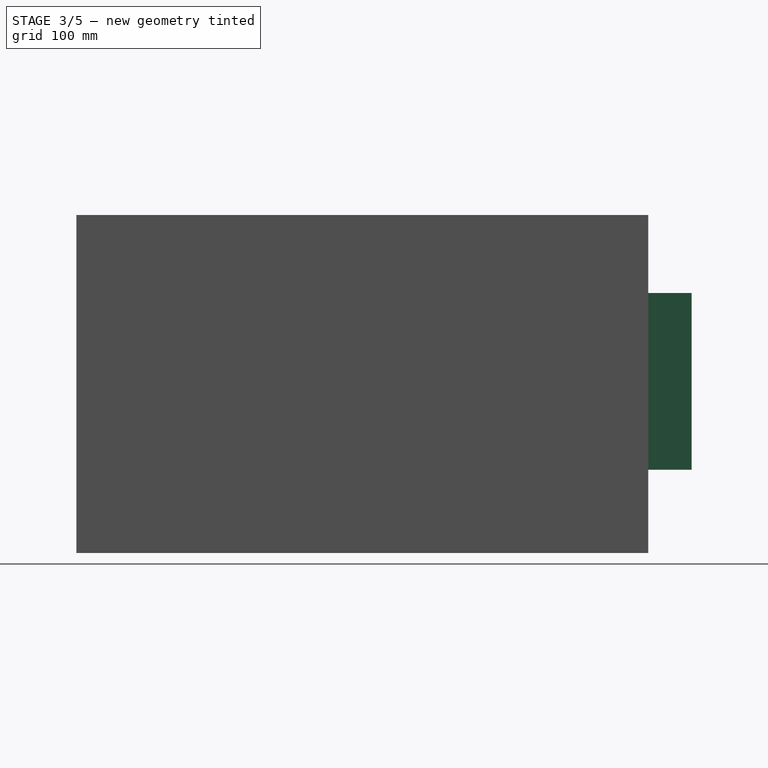
[diagram: stage 3 of 5 — right view after this stage's code; geometry added in this stage tinted green]
FEATURE [Sketcher::SketchObject] Sketch004
  ArcFitTolerance = 1e-06
  AttachmentSupport = -> [XZ_Plane002]
  FullyConstrained = true
  MakeInternals = false
  MapMode = 5
  Placement = pos=(0,0,0) rot=(1,0,0;1.5708rad)
  sketch-geometry (1):
    g0: Circle CenterX=0 CenterY=45 CenterZ=0 NormalX=0 NormalY=0 NormalZ=1 AngleXU=0 Radius=17.5
  constraints (3):
    c: Diameter(g0) = 35
    c: PointOnObject(g0,g-2)
    c: DistanceY(g-1,g0) = 45
FEATURE [PartDesign::Pad] Pad002
  Direction = (0,-1,2e-16)
  Length = 15
  Length2 = 10
  Placement = pos=(0,0,0) rot=(1,0,0;1.5708rad)
  Profile = -> Sketch004
  ReferenceAxis = -> Sketch004 [N_Axis]
  Refine = true
  Suppressed = false
  Type = 0
  UseCustomVector = true
FEATURE [Sketcher::SketchObject] Sketch005
  ArcFitTolerance = 1e-06
  AttachmentSupport = -> [Pad002]
  ExternalGeometry = -> [Pad002]
  FullyConstrained = true
  MakeInternals = false
  MapMode = 5
  Placement = pos=(0,1e-14,0) rot=(-1,0,0;1.5708rad)
  sketch-geometry (4):
    g0: LineSegment StartX=-7.5 StartY=-60.8114 StartZ=0 EndX=-7.5 EndY=-190 EndZ=0
    g1: LineSegment StartX=7.5 StartY=-60.8114 StartZ=0 EndX=7.5 EndY=-190 EndZ=0
    g2: LineSegment StartX=-7.5 StartY=-190 StartZ=0 EndX=7.5 EndY=-190 EndZ=0
    g3: LineSegment StartX=-7.5 StartY=-60.8114 StartZ=0 EndX=7.5 EndY=-60.8114 EndZ=0
  constraints (11):
    c: PointOnObject(g0,g-3)
    c: Vertical(g0)
    c: PointOnObject(g1,g-3)
    c: Vertical(g1)
    c: Symmetric(g1,g0,g-2)
    c: DistanceX(g-1,g1) = 7.5
    c: Coincident(g2,g0)
    c: Coincident(g2,g1)
    c: DistanceY(g1,g-1) = 190
    c: Coincident(g3,g0)
    c: Coincident(g3,g1)
FEATURE [PartDesign::Pad] Pad004
  BaseFeature = -> Pad002
  Direction = (0,1,2e-16)
  Length = 15
  Length2 = 10
  Placement = pos=(0,0,0) rot=(1,0,0;1.5708rad)
  Profile = -> Sketch005
  ReferenceAxis = -> Sketch005 [N_Axis]
  Refine = true
  Reversed = true
  Suppressed = false
  Type = 0
FEATURE [PartDesign::Body] Body002  label="Bar"
  AllowCompound = false
  Group = -> [Sketch004,Pad002,Sketch005,Pad004,Sketch006,Pocket002,Sketch007,Pocket003,Sketch012,Pocket007]
  Origin = -> Origin002
  Placement = pos=(43.7378,0,-34.4169) rot=(0,1,0;-0.254456rad)
  Tip = -> Pocket007
FEATURE [Sketcher::SketchObject] Sketch013
  ArcFitTolerance = 1e-06
  AttachmentSupport = -> [XZ_Plane003]
  ExternalGeometry = -> [Pocket006]
  FullyConstrained = false
  MakeInternals = false
  MapMode = 5
  Placement = pos=(0,0,0) rot=(1,0,0;1.5708rad)
  sketch-geometry (12):
    g0: LineSegment StartX=32.492 StartY=21.5654 StartZ=0 EndX=33.5 EndY=21.5654 EndZ=0
    g1: LineSegment StartX=33.5 StartY=21.5654 StartZ=0 EndX=33.5 EndY=23.7725 EndZ=0
    g2: LineSegment StartX=33.5 StartY=23.7725 StartZ=0 EndX=32.4874 EndY=23.7725 EndZ=0
    g3: LineSegment StartX=32.5 StartY=26 StartZ=0 EndX=33.5 EndY=26 EndZ=0
    g4: LineSegment StartX=33.5 StartY=26 StartZ=0 EndX=33.5 EndY=28.2071 EndZ=0
    g5: LineSegment StartX=33.5 StartY=28.2071 StartZ=0 EndX=32.5 EndY=28.2071 EndZ=0
    g6: LineSegment StartX=32.5 StartY=28.2071 StartZ=0 EndX=32.5 EndY=26 EndZ=0
    g7: LineSegment StartX=32.5 StartY=32.6267 StartZ=0 EndX=32.5 EndY=30.4196 EndZ=0
    g8: LineSegment StartX=32.5 StartY=30.4196 StartZ=0 EndX=33.5 EndY=30.4196 EndZ=0
    g9: LineSegment StartX=33.5 StartY=30.4196 StartZ=0 EndX=33.5 EndY=32.6267 EndZ=0
    g10: LineSegment StartX=33.5 StartY=32.6267 StartZ=0 EndX=32.5 EndY=32.6267 EndZ=0
    g11: LineSegment StartX=32.4874 StartY=23.7725 StartZ=0 EndX=32.492 EndY=21.5654 EndZ=0
  constraints (31):
    c: Horizontal(g0)
    c: Horizontal(g2)
    c: DistanceX(g-1,g1) = 33.5
    c: Coincident(g3,g4)
    c: Coincident(g4,g5)
    c: Coincident(g5,g6)
    c: Coincident(g6,g3)
    c: Horizontal(g3)
    c: Horizontal(g5)
    c: Vertical(g4)
    c: Vertical(g6)
    c: PointOnObject(g3,g-3)
    c: DistanceX(g-1,g4) = 33.5
    c: DistanceY(g-1,g3) = 26
    c: Vertical(g0,g1)
    c: Coincident(g7,g8)
    c: Coincident(g8,g9)
    c: Coincident(g9,g10)
    c: Coincident(g10,g7)
    c: Vertical(g7)
    c: Vertical(g9)
    c: Horizontal(g8)
    c: Horizontal(g10)
    c: PointOnObject(g7,g-3)
    c: Equal(g9,g4)
    c: Equal(g1,g4)
    c: DistanceX(g-1,g9) = 33.5
    c: Coincident(g1,g0)
    c: Coincident(g1,g2)
    c: Coincident(g11,g2)
    c: Coincident(g11,g0)
FEATURE [PartDesign::Revolution] Revolution
  Angle = 360
  Angle2 = 60
  Axis = (0,2e-16,1)
  Base = (0,0,0)
  BaseFeature = -> Pocket006
  Profile = -> Sketch013
  ReferenceAxis = -> Sketch013 [V_Axis]
  Refine = true
  Reversed = true
  Suppressed = false
  Type = 0
FEATURE [Sketcher::SketchObject] Sketch017
  ArcFitTolerance = 1e-06
  AttachmentSupport = -> [XY_Plane005]
  FullyConstrained = false
  MakeInternals = false
  MapMode = 5
  sketch-geometry (4):
    g0: LineSegment StartX=118.624 StartY=41.6118 StartZ=0 EndX=10.0253 EndY=41.6118 EndZ=0
    g1: LineSegment StartX=10.0253 StartY=41.6118 StartZ=0 EndX=10.0253 EndY=-59.5336 EndZ=0
    g2: LineSegment StartX=10.0253 StartY=-59.5336 StartZ=0 EndX=118.624 EndY=-59.5336 EndZ=0
    g3: LineSegment StartX=118.624 StartY=-59.5336 StartZ=0 EndX=118.624 EndY=41.6118 EndZ=0
  constraints (8):
    c: Coincident(g0,g1)
    c: Coincident(g1,g2)
    c: Coincident(g2,g3)
    c: Coincident(g3,g0)
    c: Horizontal(g0)
    c: Horizontal(g2)
    c: Vertical(g1)
    c: Vertical(g3)
FEATURE [PartDesign::Pad] Pad007
  Direction = (0,0,1)
  Length = 170
  Length2 = 10
  Profile = -> Sketch017
  ReferenceAxis = -> Sketch017 [N_Axis]
  Refine = true
  Suppressed = false
  Type = 0
FEATURE [Sketcher::SketchObject] Sketch018
  ArcFitTolerance = 1e-06
  AttachmentSupport = -> [XY_Plane005]
  ExternalGeometry = -> [Pad007]
  FullyConstrained = true
  MakeInternals = false
  MapMode = 5
  sketch-geometry (1):
    g0: Circle CenterX=0.01 CenterY=-7.49 CenterZ=0 NormalX=0 NormalY=0 NormalZ=1 AngleXU=0 Radius=35
  constraints (3):
    c: Diameter(g0) = 70
    c: DistanceX(g-1,g0) = 0.01
    c: DistanceY(g0,g-1) = 7.49
FEATURE [PartDesign::Pocket] Pocket011
  BaseFeature = -> Pad007
  Direction = (0,0,-1)
  Length = 5
  Length2 = 5
  Profile = -> Sketch018
  ReferenceAxis = -> Sketch018 [N_Axis]
  Refine = true
  Suppressed = false
  Type = 1
FEATURE [PartDesign::Pocket] Pocket012
  BaseFeature = -> Pocket011
  Direction = (0,0,-1)
  Length = 5
  Length2 = 5
  Midplane = true
  Profile = -> Sketch018
  ReferenceAxis = -> Sketch018 [N_Axis]
  Refine = true
  Suppressed = false
  Type = 1
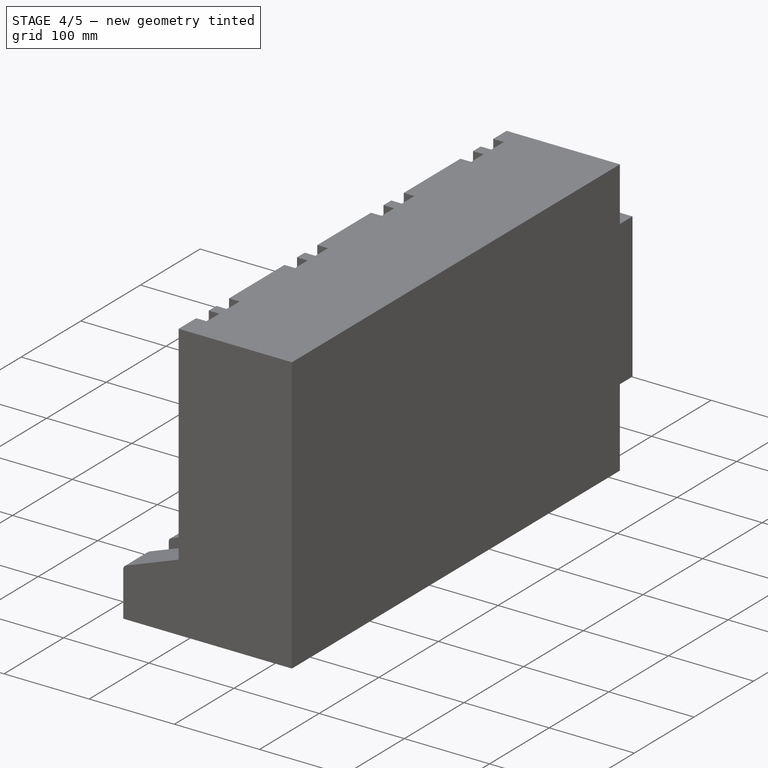
[diagram: stage 4 of 5 — iso view after this stage's code; geometry added in this stage tinted green]
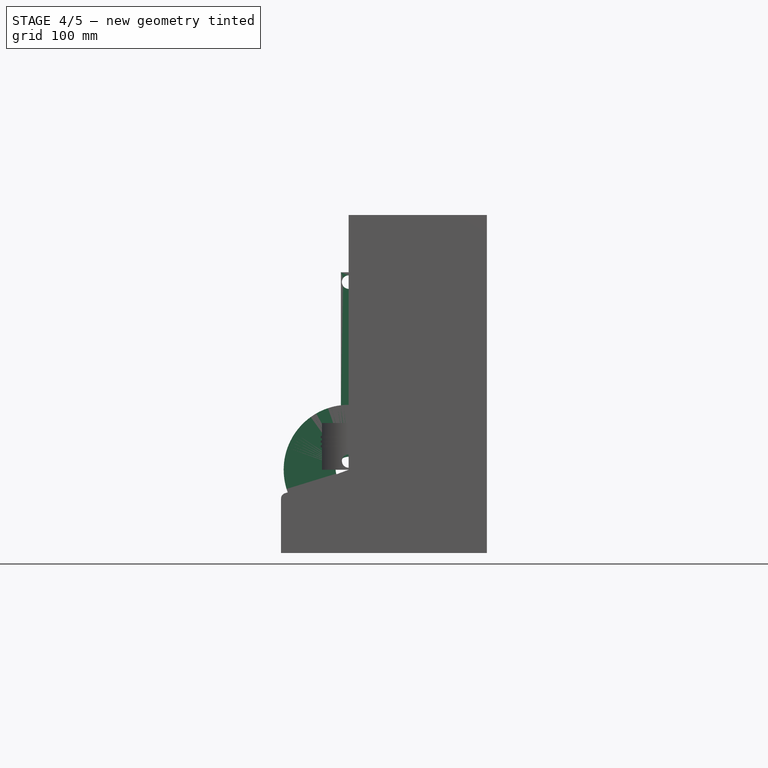
[diagram: stage 4 of 5 — front view after this stage's code; geometry added in this stage tinted green]
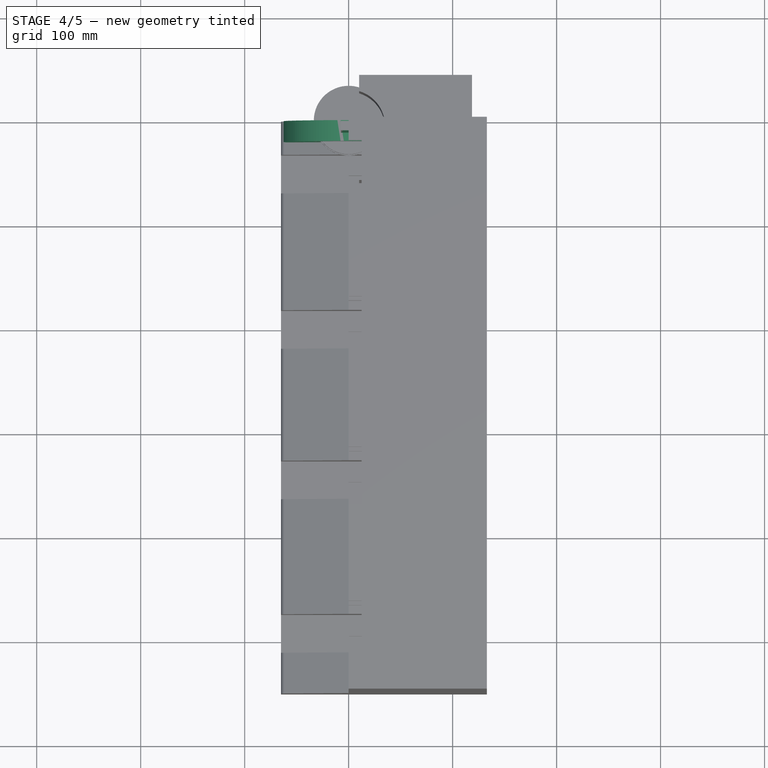
[diagram: stage 4 of 5 — top view after this stage's code; geometry added in this stage tinted green]
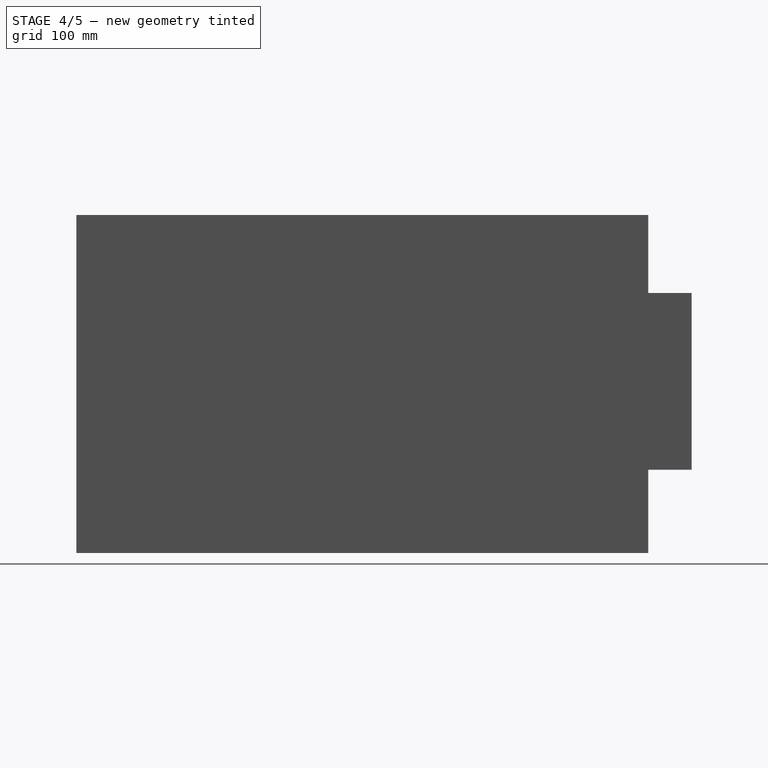
[diagram: stage 4 of 5 — right view after this stage's code; geometry added in this stage tinted green]
FEATURE [PartDesign::Body] Body
  AllowCompound = false
  Group = -> [Sketch,Pad]
  Origin = -> Origin
  Placement = pos=(0,43,0) rot=(0,0,1;0rad)
  Tip = -> Pad
FEATURE [Sketcher::SketchObject] Sketch001
  ArcFitTolerance = 1e-06
  AttachmentSupport = -> [XZ_Plane001]
  FullyConstrained = true
  MakeInternals = false
  MapMode = 5
  Placement = pos=(0,0,0) rot=(1,0,0;1.5708rad)
  sketch-geometry (1):
    g0: Circle CenterX=0 CenterY=0 CenterZ=0 NormalX=0 NormalY=0 NormalZ=1 AngleXU=0 Radius=62.5
  constraints (2):
    c: Diameter(g0) = 125
    c: Coincident(g0,g-1)
FEATURE [PartDesign::Pad] Pad001
  Direction = (0,-1,2e-16)
  Length = 20
  Length2 = 10
  Placement = pos=(0,0,0) rot=(1,0,0;1.5708rad)
  Profile = -> Sketch001
  ReferenceAxis = -> Sketch001 [N_Axis]
  Refine = true
  Suppressed = false
  Type = 0
FEATURE [Sketcher::SketchObject] Sketch006
  ArcFitTolerance = 1e-06
  AttachmentSupport = -> [XZ_Plane002]
  FullyConstrained = true
  MakeInternals = false
  MapMode = 5
  Placement = pos=(0,0,0) rot=(1,0,0;1.5708rad)
  sketch-geometry (1):
    g0: Circle CenterX=0 CenterY=45 CenterZ=0 NormalX=0 NormalY=0 NormalZ=1 AngleXU=0 Radius=10
  constraints (3):
    c: Diameter(g0) = 20
    c: PointOnObject(g0,g-2)
    c: DistanceY(g-1,g0) = 45
FEATURE [PartDesign::Pocket] Pocket002
  BaseFeature = -> Pad004
  Direction = (0,1,-2e-16)
  Length = 10
  Length2 = 5
  Midplane = true
  Placement = pos=(0,0,0) rot=(1,0,0;1.5708rad)
  Profile = -> Sketch006
  ReferenceAxis = -> Sketch006 [N_Axis]
  Refine = true
  Suppressed = false
  Type = 1
FEATURE [Sketcher::SketchObject] Sketch007
  ArcFitTolerance = 1e-06
  AttachmentSupport = -> [YZ_Plane002]
  FullyConstrained = false
  MakeInternals = false
  MapMode = 5
  Placement = pos=(0,0,0) rot=(0.57735,0.57735,0.57735;2.0944rad)
  sketch-geometry (8):
    g0: LineSegment StartX=-3 StartY=190.161 StartZ=0 EndX=-3 EndY=21.3692 EndZ=0
    g1: LineSegment StartX=-12 StartY=21.3692 StartZ=0 EndX=-12 EndY=191.131 EndZ=0
    g2: LineSegment StartX=-3 StartY=21.3692 StartZ=0 EndX=24.874 EndY=21.3692 EndZ=0
    g3: LineSegment StartX=24.874 StartY=21.3692 StartZ=0 EndX=24.874 EndY=192.767 EndZ=0
    g4: LineSegment StartX=-12 StartY=21.3692 StartZ=0 EndX=-43.0832 EndY=21.3692 EndZ=0
    g5: LineSegment StartX=-43.0832 StartY=21.3692 StartZ=0 EndX=-43.0832 EndY=191.395 EndZ=0
    g6: LineSegment StartX=-43.0832 StartY=191.395 StartZ=0 EndX=24.874 EndY=192.767 EndZ=0
    g7: LineSegment StartX=-12 StartY=191.131 StartZ=0 EndX=-3 EndY=190.161 EndZ=0
  constraints (16):
    c: Vertical(g0)
    c: DistanceX(g0,g-1) = 3
    c: Vertical(g1)
    c: DistanceX(g1,g-1) = 12
    c: Coincident(g2,g0)
    c: Horizontal(g2)
    c: Coincident(g3,g2)
    c: Vertical(g3)
    c: Coincident(g4,g1)
    c: Horizontal(g4)
    c: Coincident(g5,g4)
    c: Vertical(g5)
    c: Coincident(g6,g5)
    c: Coincident(g6,g3)
    c: Coincident(g7,g1)
    c: Coincident(g7,g0)
FEATURE [PartDesign::Pocket] Pocket003
  BaseFeature = -> Pocket002
  Direction = (-1,0,0)
  Length = 5
  Length2 = 5
  Midplane = true
  Placement = pos=(0,0,0) rot=(1,0,0;1.5708rad)
  Profile = -> Sketch007
  ReferenceAxis = -> Sketch007 [N_Axis]
  Refine = true
  Suppressed = false
  Type = 1
FEATURE [Sketcher::SketchObject] Sketch012
  ArcFitTolerance = 1e-06
  AttachmentSupport = -> [XZ_Plane002]
  FullyConstrained = true
  MakeInternals = false
  MapMode = 5
  Placement = pos=(0,0,0) rot=(1,0,0;1.5708rad)
  sketch-geometry (1):
    g0: Circle CenterX=0 CenterY=180.5 CenterZ=0 NormalX=0 NormalY=0 NormalZ=1 AngleXU=0 Radius=6.5
  constraints (3):
    c: Diameter(g0) = 13
    c: PointOnObject(g0,g-2)
    c: Distance(g0,g-1) = 180.5
FEATURE [PartDesign::Pocket] Pocket007
  BaseFeature = -> Pocket003
  Direction = (0,1,-2e-16)
  Length = 5
  Length2 = 5
  Midplane = true
  Placement = pos=(0,0,0) rot=(1,0,0;1.5708rad)
  Profile = -> Sketch012
  ReferenceAxis = -> Sketch012 [N_Axis]
  Refine = true
  Suppressed = false
  Type = 1
FEATURE [PartDesign::Body] Body005  label="CaseInterior"
  AllowCompound = false
  Group = -> [Sketch017,Pad007,Sketch018,Pocket011,Pocket012]
  Origin = -> Origin005
  Placement = pos=(0,0,67) rot=(0,0,1;0rad)
  Tip = -> Pocket012
FEATURE [Spreadsheet::Sheet] Spreadsheet  label="Parameters"
  cells = A1(Crank_Pos)==0 '; B1(Bar_PosX)==0 mm; C1(Angle)==0 deg; D1(Bar_Angle)==0 deg; E1(Supapa_A)==0 mm; F1(Supapa_A2)==0 mm; G1(Supapa_A3)==0 mm; H1(Supapa_A4)==0 mm; A2(Crank_Pos_rev)==0 mm; B2(Bar_PosX_rev)==0 mm; C2(Angle_rev)==0 deg; D2(Bar_Angle_rev)==0 deg; E2(Supapa_B)==0 mm; F2(Supapa_B2)==0 mm; G2(Supapa_B3)==0 mm; H2(Supapa_B4)==0 mm
  expr: Angle = -88.6037921905518 deg
  expr: Angle_rev = 91.3962078094482 deg
  expr: Bar_Angle = -14.9955465699724 deg
  expr: Bar_Angle_rev = 14.9955465699724 deg
  expr: Bar_PosX = 44.9866397099172 mm
  expr: Bar_PosX_rev = -44.9866397099172 mm
  expr: Crank_Pos = 1.09647052404547 mm
  expr: Crank_Pos_rev = -1.09647052404531 mm
  expr: Supapa_A = 0 mm
  expr: Supapa_A2 = 0 mm
  expr: Supapa_A3 = 0.487320232909132 mm
  expr: Supapa_A4 = 0 mm
  expr: Supapa_B = 0 mm
  expr: Supapa_B2 = 0 mm
  expr: Supapa_B3 = 0 mm
  expr: Supapa_B4 = 0.487320232909132 mm
FEATURE [Sketcher::SketchObject] Sketch002
  ArcFitTolerance = 1e-06
  AttachmentSupport = -> [XZ_Plane001]
  FullyConstrained = true
  MakeInternals = false
  MapMode = 5
  Placement = pos=(0,0,0) rot=(1,0,0;1.5708rad)
  sketch-geometry (1):
    g0: Circle CenterX=0 CenterY=0 CenterZ=0 NormalX=0 NormalY=0 NormalZ=1 AngleXU=0 Radius=12.5
  constraints (2):
    c: Diameter(g0) = 25
    c: Coincident(g0,g-1)
FEATURE [PartDesign::Pocket] Pocket
  BaseFeature = -> Pad001
  Direction = (0,1,-2e-16)
  Length = 200
  Length2 = 5
  Midplane = true
  Placement = pos=(0,0,0) rot=(1,0,0;1.5708rad)
  Profile = -> Sketch002
  ReferenceAxis = -> Sketch002 [N_Axis]
  Refine = true
  Suppressed = false
  Type = 1
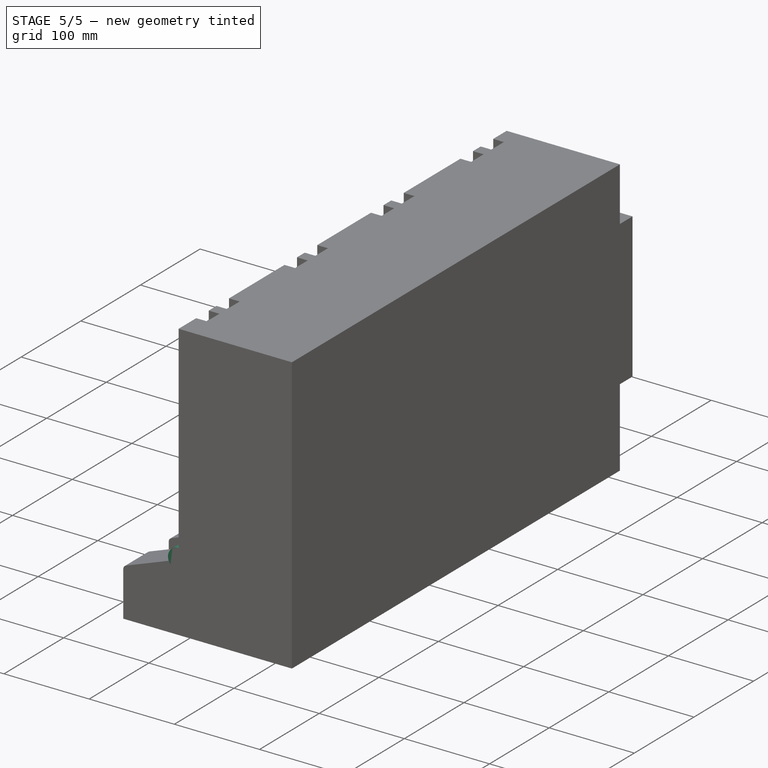
[diagram: stage 5 of 5 — iso view after this stage's code; geometry added in this stage tinted green]
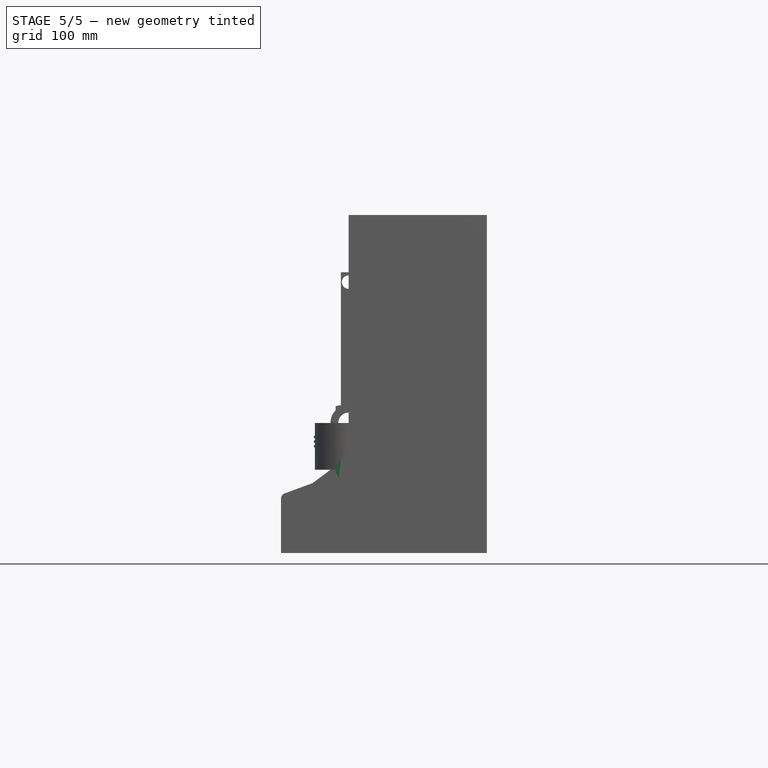
[diagram: stage 5 of 5 — front view after this stage's code; geometry added in this stage tinted green]
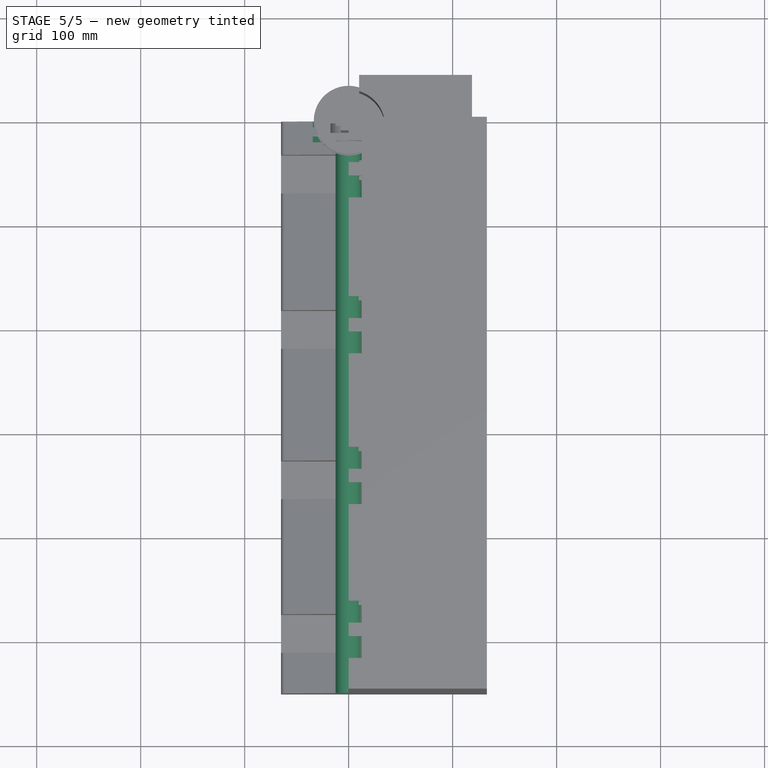
[diagram: stage 5 of 5 — top view after this stage's code; geometry added in this stage tinted green]
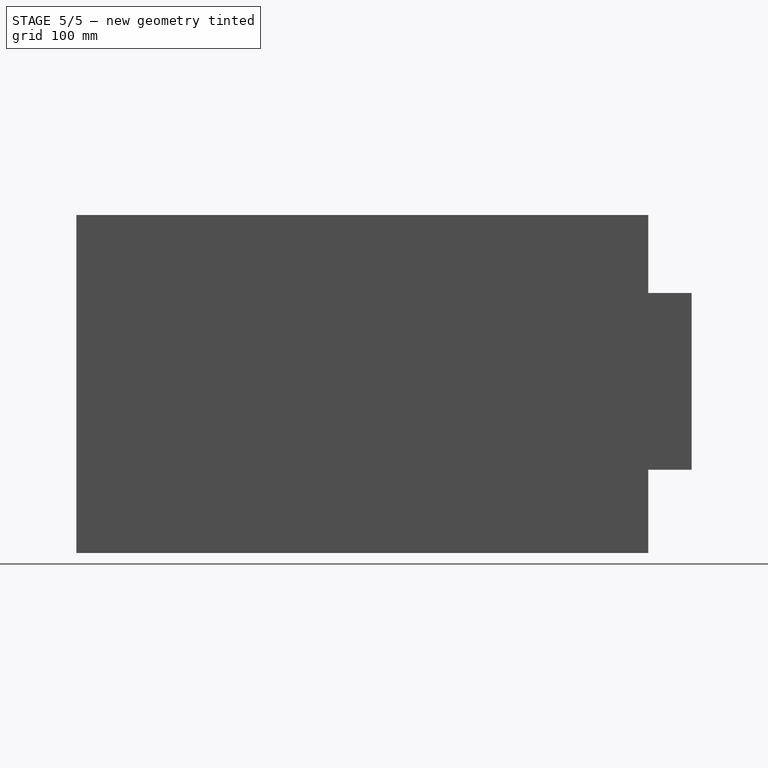
[diagram: stage 5 of 5 — right view after this stage's code; geometry added in this stage tinted green]
FEATURE [Sketcher::SketchObject] Sketch
  ArcFitTolerance = 1e-06
  AttachmentSupport = -> [XZ_Plane]
  FullyConstrained = true
  MakeInternals = false
  MapMode = 5
  Placement = pos=(0,0,0) rot=(1,0,0;1.5708rad)
  sketch-geometry (1):
    g0: Circle CenterX=0 CenterY=0 CenterZ=0 NormalX=0 NormalY=0 NormalZ=1 AngleXU=0 Radius=12.5
  constraints (2):
    c: Diameter(g0) = 25
    c: Coincident(g0,g-1)
FEATURE [PartDesign::Pad] Pad
  Direction = (0,-1,2e-16)
  Length = 550
  Length2 = 10
  Placement = pos=(0,0,0) rot=(1,0,0;1.5708rad)
  Profile = -> Sketch
  ReferenceAxis = -> Sketch [N_Axis]
  Refine = true
  Suppressed = false
  Type = 0
FEATURE [Sketcher::SketchObject] Sketch003
  ArcFitTolerance = 1e-06
  AttachmentSupport = -> [XZ_Plane001]
  ExternalGeometry = -> [Pocket]
  FullyConstrained = false
  MakeInternals = false
  MapMode = 5
  Placement = pos=(0,0,0) rot=(1,0,0;1.5708rad)
  sketch-geometry (15):
    g0: LineSegment StartX=-17.5 StartY=0 StartZ=0 EndX=-55.6237 EndY=-28.5 EndZ=0
    g1: LineSegment StartX=17.5 StartY=0 StartZ=0 EndX=55.6237 EndY=-28.5 EndZ=0
    g2: LineSegment StartX=-12.5 StartY=15 StartZ=0 EndX=-12.5 EndY=61.2372 EndZ=0
    g3: LineSegment StartX=12.5 StartY=61.2372 StartZ=0 EndX=12.5 EndY=15 EndZ=0
    g4: LineSegment StartX=-17.5 StartY=0 StartZ=0 EndX=-12.5 EndY=15 EndZ=0
    g5: LineSegment StartX=12.5 StartY=15 StartZ=0 EndX=17.5 EndY=0 EndZ=0
    g6: LineSegment StartX=-12.5 StartY=61.2372 StartZ=0 EndX=-10.2152 EndY=69.9879 EndZ=0
    g7: LineSegment StartX=12.5 StartY=61.2372 StartZ=0 EndX=12.4683 EndY=71.345 EndZ=0
    g8: LineSegment StartX=-55.6237 StartY=-28.5 StartZ=0 EndX=-118.404 EndY=45.7859 EndZ=0
    g9: LineSegment StartX=-118.404 StartY=45.7859 StartZ=0 EndX=-16.6365 EndY=95.2543 EndZ=0
    g10: LineSegment StartX=-16.6365 StartY=95.2543 StartZ=0 EndX=53.285 EndY=95.2543 EndZ=0
    g11: LineSegment StartX=53.285 StartY=95.2543 StartZ=0 EndX=87.1096 EndY=0 EndZ=0
    g12: LineSegment StartX=87.1096 StartY=0 StartZ=0 EndX=60.5266 EndY=-36.2011 EndZ=0
    g13: LineSegment StartX=60.5266 StartY=-36.2011 StartZ=0 EndX=55.6237 EndY=-28.5 EndZ=0
    g14: LineSegment StartX=-10.2152 StartY=69.9879 StartZ=0 EndX=12.4683 EndY=71.345 EndZ=0
  constraints (30):
    c: PointOnObject(g0,g-1)
    c: PointOnObject(g1,g-3)
    c: Symmetric(g0,g1,g-2)
    c: DistanceX(g-1,g1) = 17.5
    c: DistanceY(g1,g-1) = 28.5
    c: Symmetric(g0,g1,g-2)
    c: Vertical(g2)
    c: PointOnObject(g3,g-3)
    c: Vertical(g3)
    c: DistanceX(g2,g-1) = 12.5
    c: Symmetric(g2,g3,g-2)
    c: Horizontal(g2,g3)
    c: DistanceY(g-1,g2) = 15
    c: Coincident(g4,g2)
    c: Coincident(g5,g3)
    c: Coincident(g4,g0)
    c: Coincident(g5,g1)
    c: Coincident(g6,g2)
    c: Coincident(g7,g3)
    c: Coincident(g0,g8)
    c: Coincident(g8,g9)
    c: Coincident(g9,g10)
    c: Horizontal(g10)
    c: Coincident(g10,g11)
    c: PointOnObject(g11,g-1)
    c: Coincident(g11,g12)
    c: Coincident(g13,g12)
    c: Coincident(g13,g1)
    c: Coincident(g14,g6)
    c: Coincident(g14,g7)
FEATURE [PartDesign::Pocket] Pocket001
  BaseFeature = -> Pocket
  Direction = (0,1,-2e-16)
  Length = 5
  Length2 = 5
  Placement = pos=(0,0,0) rot=(1,0,0;1.5708rad)
  Profile = -> Sketch003
  ReferenceAxis = -> Sketch003 [N_Axis]
  Refine = true
  Reversed = true
  Suppressed = false
  Type = 1
FEATURE [PartDesign::Pocket] Pocket004
  BaseFeature = -> Pocket001
  Direction = (-1,0,0)
  Length = 5
  Length2 = 5
  Midplane = true
  Placement = pos=(0,0,0) rot=(1,0,0;1.5708rad)
  Profile = -> Sketch008
  ReferenceAxis = -> Sketch008 [N_Axis]
  Refine = true
  Suppressed = false
  Type = 1
FEATURE [PartDesign::Pocket] Pocket005
  BaseFeature = -> Pocket004
  Direction = (0,1,-2e-16)
  Length = 5
  Length2 = 5
  Midplane = true
  Placement = pos=(0,0,0) rot=(1,0,0;1.5708rad)
  Profile = -> Sketch009
  ReferenceAxis = -> Sketch009 [N_Axis]
  Refine = true
  Suppressed = false
  Type = 1
FEATURE [PartDesign::Pocket] Pocket013
  BaseFeature = -> Pocket005
  Direction = (-1,0,0)
  Length = 5
  Length2 = 5
  Placement = pos=(0,0,0) rot=(1,0,0;1.5708rad)
  Profile = -> Sketch008
  ReferenceAxis = -> Sketch008 [N_Axis]
  Refine = true
  Suppressed = false
  Type = 0
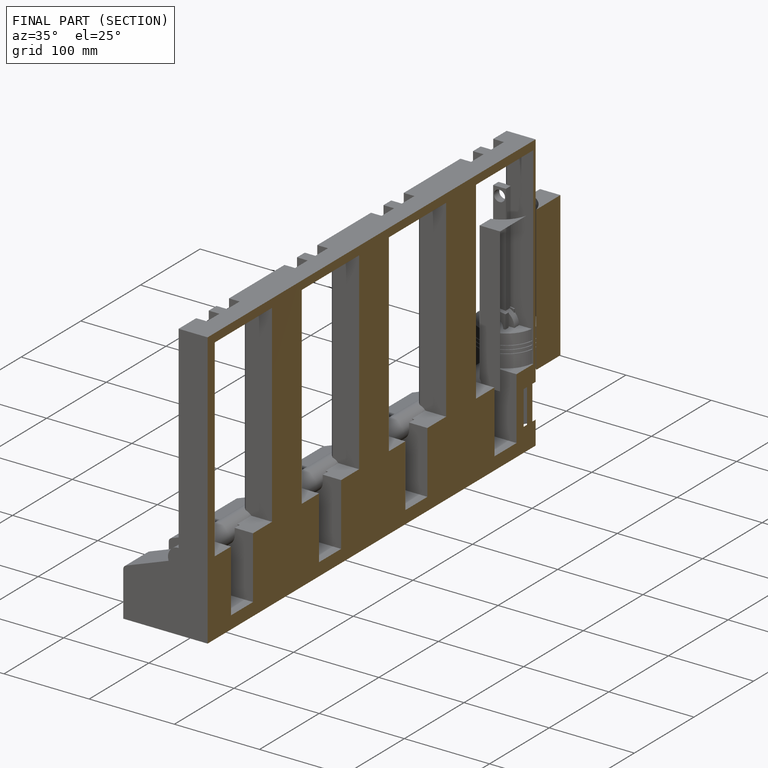
[diagram: finished part — half-section view (interior)]
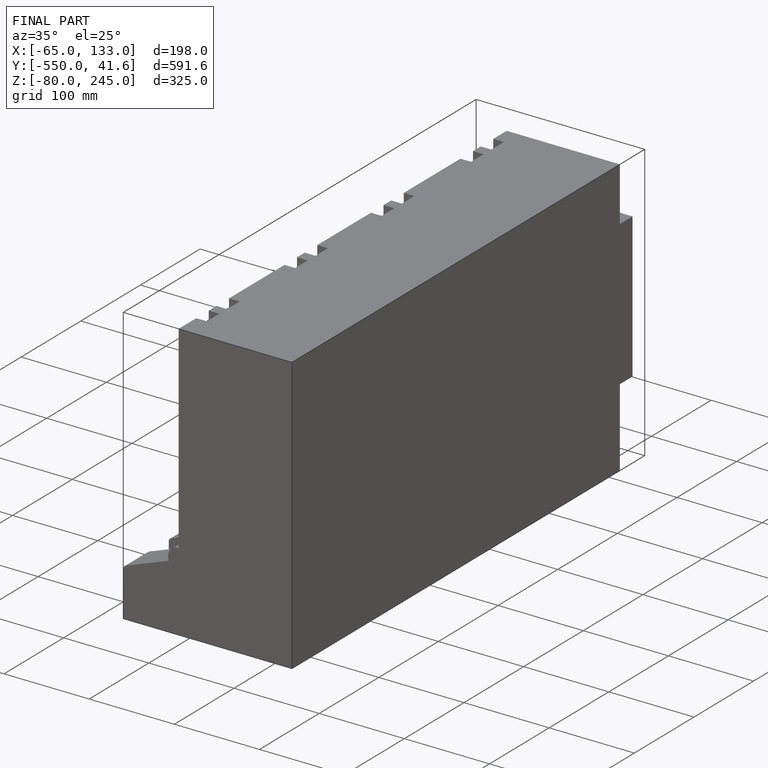
[diagram: finished part — iso view with bounding-box wireframe]
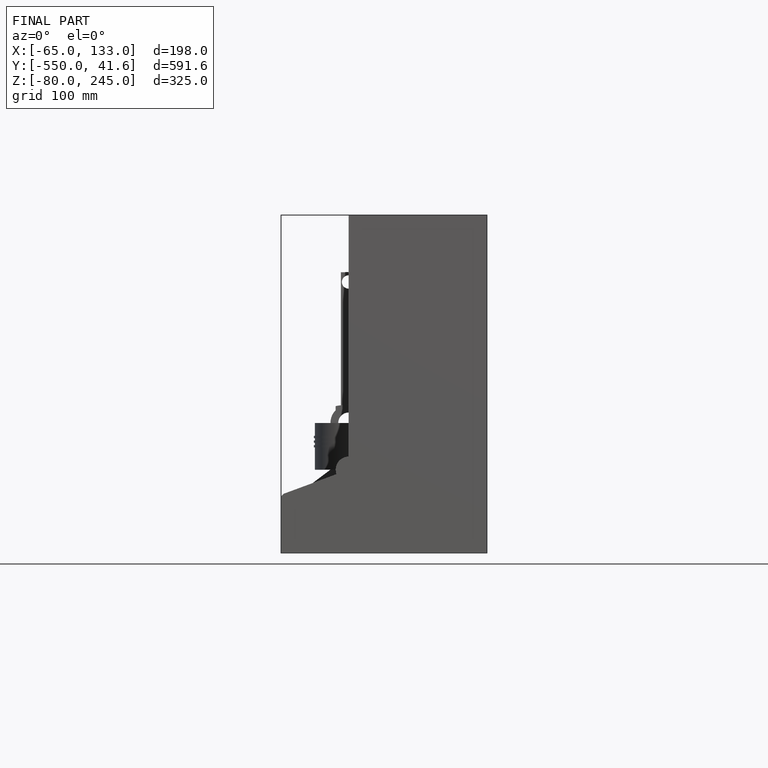
[diagram: finished part — front view with bounding-box wireframe]
